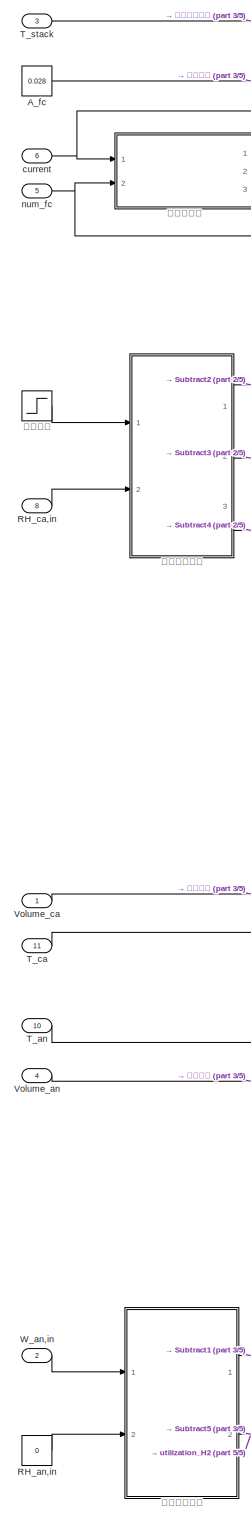
[diagram: root canvas - part 1/5, left side, full height]
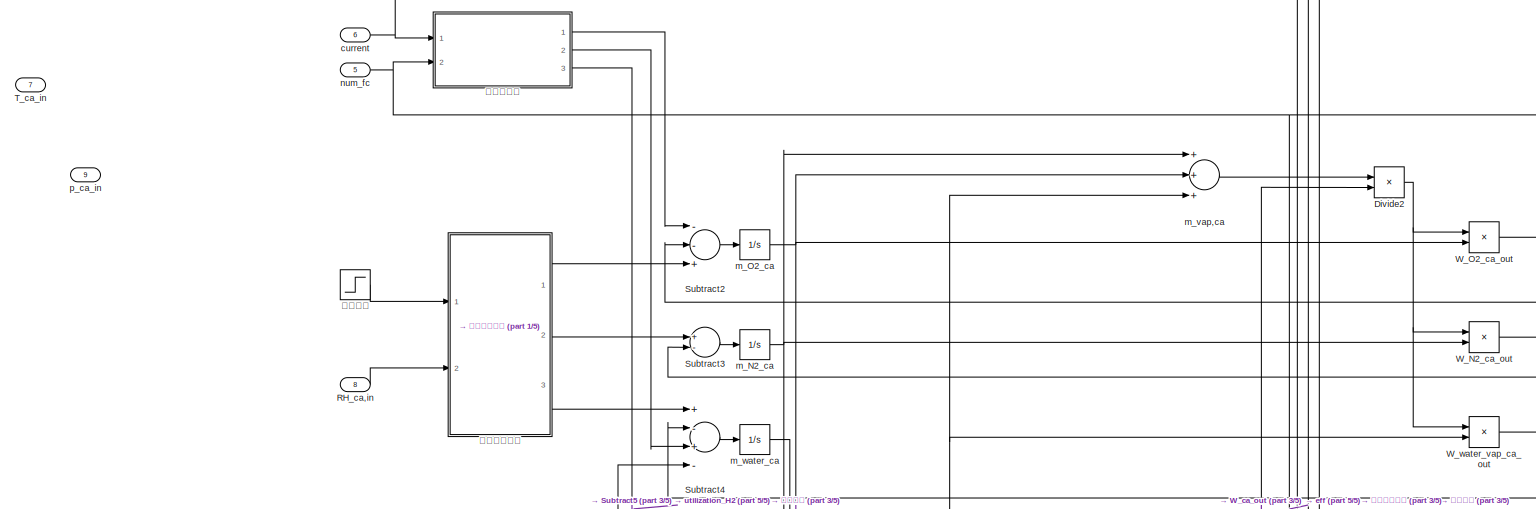
[diagram: root canvas - part 2/5, full width, top band]
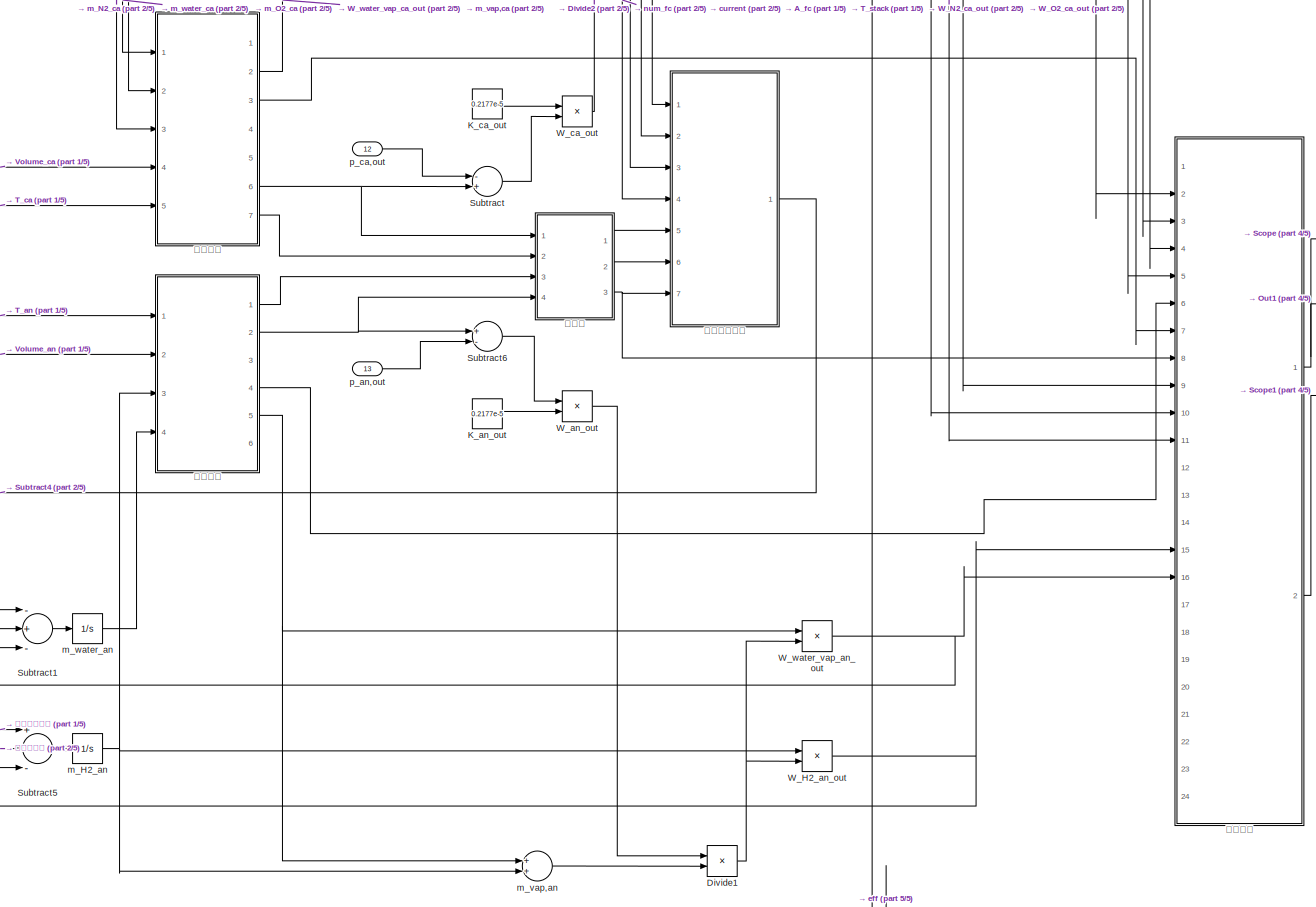
[diagram: root canvas - part 3/5, bottom center region]
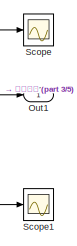
[diagram: root canvas - part 4/5, middle right region]
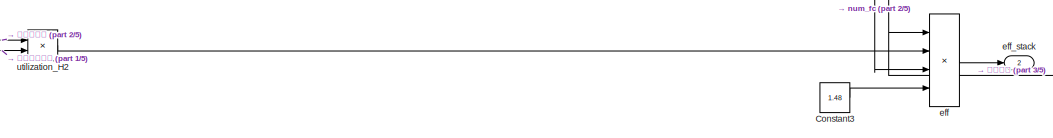
[diagram: root canvas - part 5/5, bottom center region]
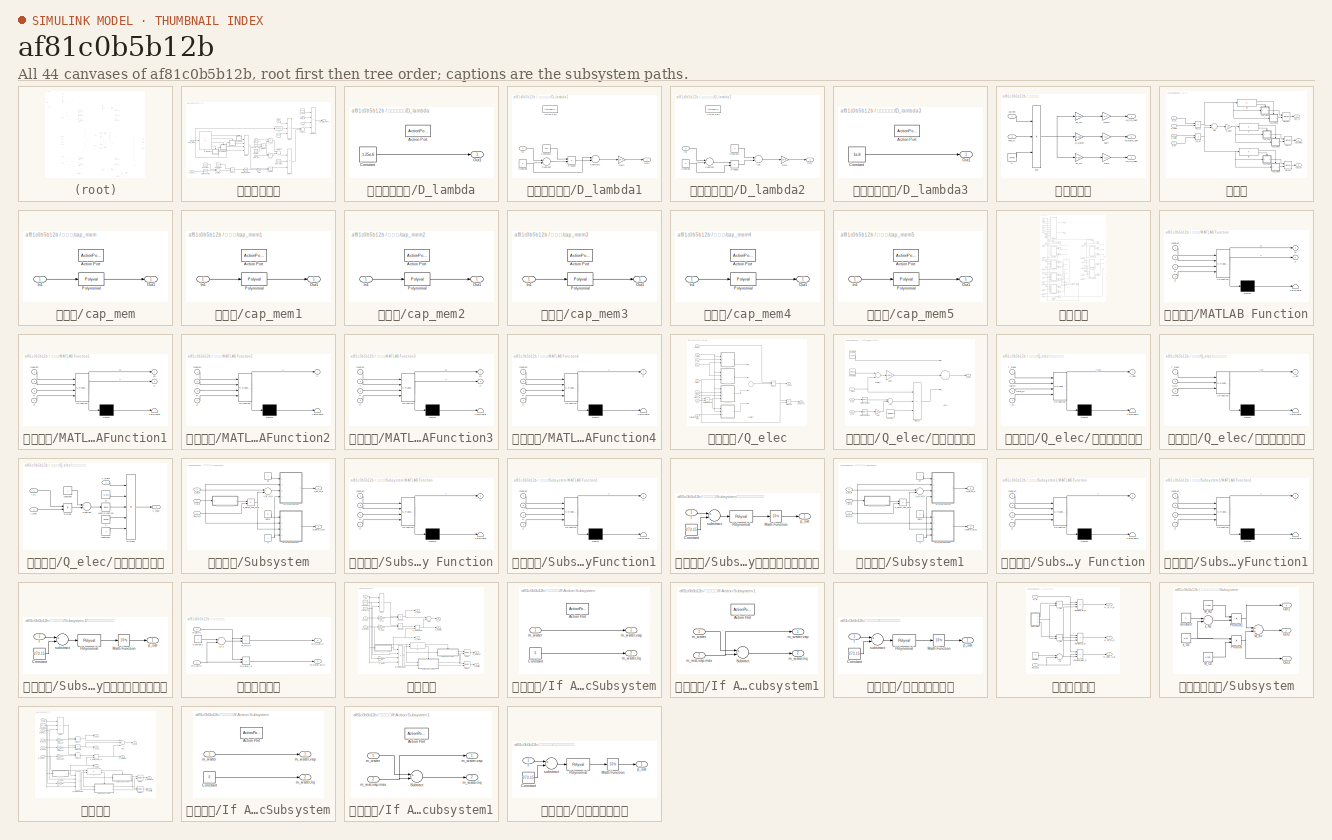
[diagram: thumbnail index - all 44 canvases of the model, root first then tree order]
MODEL slx_af81c0b5b12b
KIND model
BLOCK [Constant] A_fc
  Value = 0.028
BLOCK [Constant] Constant3
  Value = 1.48
BLOCK [Product] Divide1
  InputSameDT = off
  Inputs = */
  OutDataTypeStr = Inherit: Inherit via internal rule
  Ports = [2, 1]
  RndMeth = Floor
  SaturateOnIntegerOverflow = off
BLOCK [Product] Divide2
  InputSameDT = off
  Inputs = /*
  OutDataTypeStr = Inherit: Inherit via internal rule
  Ports = [2, 1]
  RndMeth = Floor
  SaturateOnIntegerOverflow = off
BLOCK [Constant] K_an_out
  Value = 0.2177e-5
BLOCK [Constant] K_ca_out
  Value = 0.2177e-5
BLOCK [Outport] Out1
  IconDisplay = Port number
BLOCK [Constant] RH_an,in
  Value = 0
BLOCK [Inport] RH_ca,in
  IconDisplay = Port number
  Port = 8
BLOCK [Scope] Scope
  Floating = off
  NumInputPorts = 1
  Ports = [1]
  ShowLegends = off
BLOCK [Scope] Scope1
  Floating = off
  NumInputPorts = 1
  Ports = [1]
  SaveName = ScopeData1
  ShowLegends = off
BLOCK [Sum] Subtract
  InputSameDT = off
  Inputs = -+
  OutDataTypeStr = Inherit: Inherit via internal rule
  Ports = [2, 1]
  SaturateOnIntegerOverflow = off
BLOCK [Sum] Subtract1
  InputSameDT = off
  Inputs = -+-
  OutDataTypeStr = Inherit: Inherit via internal rule
  Ports = [3, 1]
  SaturateOnIntegerOverflow = off
BLOCK [Sum] Subtract2
  InputSameDT = off
  Inputs = --+
  OutDataTypeStr = Inherit: Inherit via internal rule
  Ports = [3, 1]
  SaturateOnIntegerOverflow = off
BLOCK [Sum] Subtract3
  InputSameDT = off
  Inputs = +-
  OutDataTypeStr = Inherit: Inherit via internal rule
  Ports = [2, 1]
  SaturateOnIntegerOverflow = off
BLOCK [Sum] Subtract4
  InputSameDT = off
  Inputs = +-+-
  OutDataTypeStr = Inherit: Inherit via internal rule
  Ports = [4, 1]
  SaturateOnIntegerOverflow = off
BLOCK [Sum] Subtract5
  InputSameDT = off
  Inputs = +--
  OutDataTypeStr = Inherit: Inherit via internal rule
  Ports = [3, 1]
  SaturateOnIntegerOverflow = off
BLOCK [Sum] Subtract6
  InputSameDT = off
  Inputs = +-
  OutDataTypeStr = Inherit: Inherit via internal rule
  Ports = [2, 1]
  SaturateOnIntegerOverflow = off
BLOCK [Inport] T_an
  IconDisplay = Port number
  Port = 10
BLOCK [Inport] T_ca
  IconDisplay = Port number
  Port = 11
BLOCK [Inport] T_ca_in
  IconDisplay = Port number
  Port = 7
BLOCK [Inport] T_stack
  IconDisplay = Port number
  Port = 3
BLOCK [Inport] Volume_an
  IconDisplay = Port number
  Port = 4
BLOCK [Inport] Volume_ca
  IconDisplay = Port number
BLOCK [Product] W_H2_an_out
  InputSameDT = off
  OutDataTypeStr = Inherit: Inherit via internal rule
  Ports = [2, 1]
  RndMeth = Floor
  SaturateOnIntegerOverflow = off
BLOCK [Product] W_N2_ca_out
  InputSameDT = off
  OutDataTypeStr = Inherit: Inherit via internal rule
  Ports = [2, 1]
  RndMeth = Floor
  SaturateOnIntegerOverflow = off
BLOCK [Product] W_O2_ca_out
  InputSameDT = off
  OutDataTypeStr = Inherit: Inherit via internal rule
  Ports = [2, 1]
  RndMeth = Floor
  SaturateOnIntegerOverflow = off
BLOCK [Inport] W_an,in
  IconDisplay = Port number
  Port = 2
BLOCK [Product] W_an_out
  InputSameDT = off
  OutDataTypeStr = Inherit: Inherit via internal rule
  Ports = [2, 1]
  RndMeth = Floor
  SaturateOnIntegerOverflow = off
BLOCK [Product] W_ca_out
  InputSameDT = off
  OutDataTypeStr = Inherit: Inherit via internal rule
  Ports = [2, 1]
  RndMeth = Floor
  SaturateOnIntegerOverflow = off
BLOCK [Product] W_water_vap_an_out
  InputSameDT = off
  OutDataTypeStr = Inherit: Inherit via internal rule
  Ports = [2, 1]
  RndMeth = Floor
  SaturateOnIntegerOverflow = off
BLOCK [Product] W_water_vap_ca_out
  InputSameDT = off
  OutDataTypeStr = Inherit: Inherit via internal rule
  Ports = [2, 1]
  RndMeth = Floor
  SaturateOnIntegerOverflow = off
BLOCK [Inport] current
  IconDisplay = Port number
  Port = 6
BLOCK [Product] eff
  InputSameDT = off
  Inputs = **//
  OutDataTypeStr = Inherit: Inherit via internal rule
  Ports = [4, 1]
  RndMeth = Floor
  SaturateOnIntegerOverflow = off
BLOCK [Outport] eff_stack
  IconDisplay = Port number
  Port = 2
BLOCK [Integrator] m_H2_an
  Ports = [1, 1]
BLOCK [Integrator] m_N2_ca
  Ports = [1, 1]
BLOCK [Integrator] m_O2_ca
  Ports = [1, 1]
BLOCK [Sum] m_vap,an
  InputSameDT = off
  OutDataTypeStr = Inherit: Inherit via internal rule
  Ports = [2, 1]
  SaturateOnIntegerOverflow = off
BLOCK [Sum] m_vap,ca
  InputSameDT = off
  Inputs = +++
  OutDataTypeStr = Inherit: Inherit via internal rule
  Ports = [3, 1]
  SaturateOnIntegerOverflow = off
BLOCK [Integrator] m_water_an
  Ports = [1, 1]
BLOCK [Integrator] m_water_ca
  Ports = [1, 1]
BLOCK [Inport] num_fc
  IconDisplay = Port number
  Port = 5
BLOCK [Inport] p_an,out
  IconDisplay = Port number
  Port = 13
BLOCK [Inport] p_ca,out
  IconDisplay = Port number
  Port = 12
BLOCK [Inport] p_ca_in
  IconDisplay = Port number
  Port = 9
BLOCK [Product] utilization_H2
  InputSameDT = off
  Inputs = */
  OutDataTypeStr = Inherit: Inherit via internal rule
  Ports = [2, 1]
  RndMeth = Floor
  SaturateOnIntegerOverflow = off
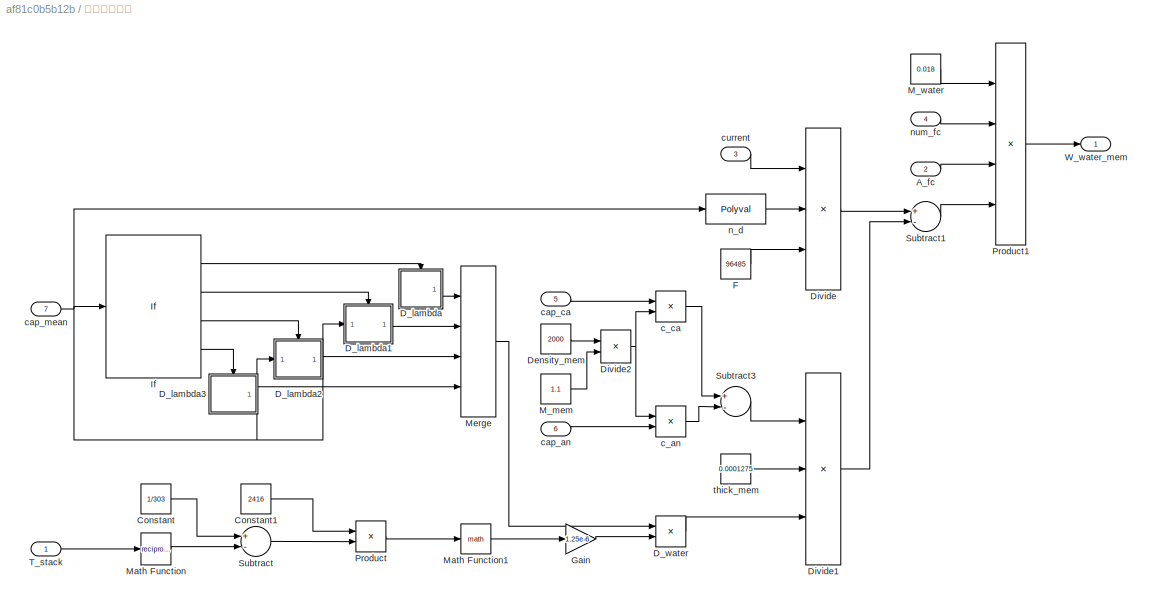
BLOCK [SubSystem] 交换膜水传递
  Ports = [7, 1]
  RequestExecContextInheritance = off
  TreatAsAtomicUnit = on
BLOCK [Inport] 交换膜水传递/A_fc
  IconDisplay = Port number
  Port = 2
BLOCK [Constant] 交换膜水传递/Constant
  Value = 1/303
BLOCK [Constant] 交换膜水传递/Constant1
  Value = 2416
BLOCK [SubSystem] 交换膜水传递/D_lambda
  Ports = [0, 1, 0, 0, 0, 0, 0, 1]
  RequestExecContextInheritance = off
  TreatAsAtomicUnit = on
BLOCK [ActionPort] 交换膜水传递/D_lambda/Action Port
  ActionType = then
BLOCK [Constant] 交换膜水传递/D_lambda/Constant
  Value = 1.25e-6
BLOCK [Outport] 交换膜水传递/D_lambda/Out1
  IconDisplay = Port number
BLOCK [SubSystem] 交换膜水传递/D_lambda1
  Ports = [1, 1, 0, 0, 0, 0, 0, 1]
  RequestExecContextInheritance = off
  TreatAsAtomicUnit = on
BLOCK [ActionPort] 交换膜水传递/D_lambda1/Action Port
  ActionType = elseif
BLOCK [Constant] 交换膜水传递/D_lambda1/Constant
  Value = 3
BLOCK [Constant] 交换膜水传递/D_lambda1/Constant1
  Value = 1.67
BLOCK [Gain] 交换膜水传递/D_lambda1/Gain
  Gain = 1e-6
  OutDataTypeStr = Inherit: Inherit via internal rule
  ParamDataTypeStr = Inherit: Inherit via internal rule
  SaturateOnIntegerOverflow = off
BLOCK [Inport] 交换膜水传递/D_lambda1/In1
  IconDisplay = Port number
BLOCK [Outport] 交换膜水传递/D_lambda1/Out1
  IconDisplay = Port number
BLOCK [Product] 交换膜水传递/D_lambda1/Product
  InputSameDT = off
  OutDataTypeStr = Inherit: Inherit via internal rule
  Ports = [2, 1]
  RndMeth = Floor
  SaturateOnIntegerOverflow = off
BLOCK [Sum] 交换膜水传递/D_lambda1/Subtract
  InputSameDT = off
  Inputs = +-
  OutDataTypeStr = Inherit: Inherit via internal rule
  Ports = [2, 1]
  SaturateOnIntegerOverflow = off
BLOCK [Sum] 交换膜水传递/D_lambda1/Subtract1
  InputSameDT = off
  Inputs = +-
  OutDataTypeStr = Inherit: Inherit via internal rule
  Ports = [2, 1]
  SaturateOnIntegerOverflow = off
BLOCK [SubSystem] 交换膜水传递/D_lambda2
  Ports = [1, 1, 0, 0, 0, 0, 0, 1]
  RequestExecContextInheritance = off
  TreatAsAtomicUnit = on
BLOCK [ActionPort] 交换膜水传递/D_lambda2/Action Port
  ActionType = elseif
BLOCK [Sum] 交换膜水传递/D_lambda2/Add
  InputSameDT = off
  OutDataTypeStr = Inherit: Inherit via internal rule
  Ports = [2, 1]
  SaturateOnIntegerOverflow = off
BLOCK [Constant] 交换膜水传递/D_lambda2/Constant
  Value = 2
BLOCK [Constant] 交换膜水传递/D_lambda2/Constant1
BLOCK [Gain] 交换膜水传递/D_lambda2/Gain
  Gain = 1e-6
  OutDataTypeStr = Inherit: Inherit via internal rule
  ParamDataTypeStr = Inherit: Inherit via internal rule
  SaturateOnIntegerOverflow = off
BLOCK [Inport] 交换膜水传递/D_lambda2/In1
  IconDisplay = Port number
BLOCK [Outport] 交换膜水传递/D_lambda2/Out1
  IconDisplay = Port number
BLOCK [Product] 交换膜水传递/D_lambda2/Product
  InputSameDT = off
  OutDataTypeStr = Inherit: Inherit via internal rule
  Ports = [2, 1]
  RndMeth = Floor
  SaturateOnIntegerOverflow = off
BLOCK [Sum] 交换膜水传递/D_lambda2/Subtract
  InputSameDT = off
  Inputs = +-
  OutDataTypeStr = Inherit: Inherit via internal rule
  Ports = [2, 1]
  SaturateOnIntegerOverflow = off
BLOCK [SubSystem] 交换膜水传递/D_lambda3
  Ports = [0, 1, 0, 0, 0, 0, 0, 1]
  RequestExecContextInheritance = off
  TreatAsAtomicUnit = on
BLOCK [ActionPort] 交换膜水传递/D_lambda3/Action Port
  ActionType = else
BLOCK [Constant] 交换膜水传递/D_lambda3/Constant
  Value = 1e-6
BLOCK [Outport] 交换膜水传递/D_lambda3/Out1
  IconDisplay = Port number
BLOCK [Product] 交换膜水传递/D_water
  InputSameDT = off
  OutDataTypeStr = Inherit: Inherit via internal rule
  Ports = [2, 1]
  RndMeth = Floor
  SaturateOnIntegerOverflow = off
BLOCK [Constant] 交换膜水传递/Density_mem
  Value = 2000
BLOCK [Product] 交换膜水传递/Divide
  InputSameDT = off
  Inputs = */*
  OutDataTypeStr = Inherit: Inherit via internal rule
  Ports = [3, 1]
  RndMeth = Floor
  SaturateOnIntegerOverflow = off
BLOCK [Product] 交换膜水传递/Divide1
  InputSameDT = off
  Inputs = */*
  OutDataTypeStr = Inherit: Inherit via internal rule
  Ports = [3, 1]
  RndMeth = Floor
  SaturateOnIntegerOverflow = off
BLOCK [Product] 交换膜水传递/Divide2
  InputSameDT = off
  Inputs = */
  OutDataTypeStr = Inherit: Inherit via internal rule
  Ports = [2, 1]
  RndMeth = Floor
  SaturateOnIntegerOverflow = off
BLOCK [Constant] 交换膜水传递/F
  Value = 96485
BLOCK [Gain] 交换膜水传递/Gain
  Gain = 1.25e-6
  OutDataTypeStr = Inherit: Inherit via internal rule
  ParamDataTypeStr = Inherit: Inherit via internal rule
  SaturateOnIntegerOverflow = off
BLOCK [If] 交换膜水传递/If
  ElseIfExpressions = u1 > 3,u1 >= 2
  IfExpression = u1 >= 4.5
  Ports = [1, 4]
  ZeroCross = off
BLOCK [Constant] 交换膜水传递/M_mem
  Value = 1.1
BLOCK [Constant] 交换膜水传递/M_water
  Value = 0.018
BLOCK [Math] 交换膜水传递/Math Function
  Operator = reciprocal
  Ports = [1, 1]
BLOCK [Math] 交换膜水传递/Math Function1
  Ports = [1, 1]
BLOCK [Merge] 交换膜水传递/Merge
  Inputs = 4
  Ports = [4, 1]
BLOCK [Product] 交换膜水传递/Product
  InputSameDT = off
  OutDataTypeStr = Inherit: Inherit via internal rule
  Ports = [2, 1]
  RndMeth = Floor
  SaturateOnIntegerOverflow = off
BLOCK [Product] 交换膜水传递/Product1
  InputSameDT = off
  Inputs = 4
  OutDataTypeStr = Inherit: Inherit via internal rule
  Ports = [4, 1]
  RndMeth = Floor
  SaturateOnIntegerOverflow = off
BLOCK [Sum] 交换膜水传递/Subtract
  InputSameDT = off
  Inputs = +-
  OutDataTypeStr = Inherit: Inherit via internal rule
  Ports = [2, 1]
  SaturateOnIntegerOverflow = off
BLOCK [Sum] 交换膜水传递/Subtract1
  InputSameDT = off
  Inputs = +-
  OutDataTypeStr = Inherit: Inherit via internal rule
  Ports = [2, 1]
  SaturateOnIntegerOverflow = off
BLOCK [Sum] 交换膜水传递/Subtract3
  InputSameDT = off
  Inputs = +-
  OutDataTypeStr = Inherit: Inherit via internal rule
  Ports = [2, 1]
  SaturateOnIntegerOverflow = off
BLOCK [Inport] 交换膜水传递/T_stack
  IconDisplay = Port number
BLOCK [Outport] 交换膜水传递/W_water_mem
  IconDisplay = Port number
BLOCK [Product] 交换膜水传递/c_an
  InputSameDT = off
  OutDataTypeStr = Inherit: Inherit via internal rule
  Ports = [2, 1]
  RndMeth = Floor
  SaturateOnIntegerOverflow = off
BLOCK [Product] 交换膜水传递/c_ca
  InputSameDT = off
  OutDataTypeStr = Inherit: Inherit via internal rule
  Ports = [2, 1]
  RndMeth = Floor
  SaturateOnIntegerOverflow = off
BLOCK [Inport] 交换膜水传递/cap_an
  IconDisplay = Port number
  Port = 6
BLOCK [Inport] 交换膜水传递/cap_ca
  IconDisplay = Port number
  Port = 5
BLOCK [Inport] 交换膜水传递/cap_mean
  IconDisplay = Port number
  Port = 7
BLOCK [Inport] 交换膜水传递/current
  IconDisplay = Port number
  Port = 3
BLOCK [Polyval] 交换膜水传递/n_d
  Coefs = [0.0029,0.05,-3.4e-19]
BLOCK [Inport] 交换膜水传递/num_fc
  IconDisplay = Port number
  Port = 4
BLOCK [Constant] 交换膜水传递/thick_mem
  Value = 0.0001275
BLOCK [SubSystem] 反应过程量
  Ports = [2, 3]
  RequestExecContextInheritance = off
BLOCK [Constant] 反应过程量/F
  Value = 96485
BLOCK [Gain] 反应过程量/Gain
  Gain = 1/2
  OutDataTypeStr = Inherit: Inherit via internal rule
  ParamDataTypeStr = Inherit: Inherit via internal rule
  SaturateOnIntegerOverflow = off
BLOCK [Gain] 反应过程量/Gain1
  Gain = 1/4
  OutDataTypeStr = Inherit: Inherit via internal rule
  ParamDataTypeStr = Inherit: Inherit via internal rule
  SaturateOnIntegerOverflow = off
BLOCK [Gain] 反应过程量/M_H2
  Gain = 0.002
  OutDataTypeStr = Inherit: Inherit via internal rule
  ParamDataTypeStr = Inherit: Inherit via internal rule
  SaturateOnIntegerOverflow = off
BLOCK [Gain] 反应过程量/M_O2
  Gain = 0.032
  OutDataTypeStr = Inherit: Inherit via internal rule
  ParamDataTypeStr = Inherit: Inherit via internal rule
  SaturateOnIntegerOverflow = off
BLOCK [Gain] 反应过程量/M_water
  Gain = 0.018
  OutDataTypeStr = Inherit: Inherit via internal rule
  ParamDataTypeStr = Inherit: Inherit via internal rule
  SaturateOnIntegerOverflow = off
BLOCK [Outport] 反应过程量/W_H2_react
  IconDisplay = Port number
  Port = 3
BLOCK [Outport] 反应过程量/W_O2_react
  IconDisplay = Port number
BLOCK [Outport] 反应过程量/W_water_gen
  IconDisplay = Port number
  Port = 2
BLOCK [Inport] 反应过程量/current
  IconDisplay = Port number
BLOCK [Gain] 反应过程量/gain
  Gain = 1/2
  OutDataTypeStr = Inherit: Inherit via internal rule
  ParamDataTypeStr = Inherit: Inherit via internal rule
  SaturateOnIntegerOverflow = off
BLOCK [Inport] 反应过程量/num_fc
  IconDisplay = Port number
  Port = 2
BLOCK [Product] 反应过程量/sub
  InputSameDT = off
  Inputs = **/
  OutDataTypeStr = Inherit: Inherit via internal rule
  Ports = [3, 1]
  RndMeth = Floor
  SaturateOnIntegerOverflow = off
BLOCK [SubSystem] 含水量
  Ports = [4, 3]
  RequestExecContextInheritance = off
BLOCK [Sum] 含水量/Add
  InputSameDT = off
  OutDataTypeStr = Inherit: Inherit via internal rule
  Ports = [2, 1]
  SaturateOnIntegerOverflow = off
BLOCK [If] 含水量/If
  IfExpression = u1 > 1
  Ports = [1, 2]
BLOCK [If] 含水量/If1
  IfExpression = u1 > 1
  Ports = [1, 2]
BLOCK [If] 含水量/If2
  IfExpression = u1 > 1
  Ports = [1, 2]
BLOCK [Merge] 含水量/Merge
  Ports = [2, 1]
BLOCK [Merge] 含水量/Merge1
  Ports = [2, 1]
BLOCK [Merge] 含水量/Merge2
  Ports = [2, 1]
BLOCK [Product] 含水量/RH_an
  InputSameDT = off
  Inputs = /*
  OutDataTypeStr = Inherit: Inherit via internal rule
  Ports = [2, 1]
  RndMeth = Floor
  SaturateOnIntegerOverflow = off
BLOCK [Product] 含水量/RH_ca
  InputSameDT = off
  Inputs = */
  OutDataTypeStr = Inherit: Inherit via internal rule
  Ports = [2, 1]
  RndMeth = Floor
  SaturateOnIntegerOverflow = off
BLOCK [Gain] 含水量/a_mean
  Gain = 1/2
  OutDataTypeStr = Inherit: Inherit via internal rule
  ParamDataTypeStr = Inherit: Inherit via internal rule
  SaturateOnIntegerOverflow = off
BLOCK [Outport] 含水量/cap_an
  IconDisplay = Port number
  Port = 2
BLOCK [Outport] 含水量/cap_ca
  IconDisplay = Port number
BLOCK [Outport] 含水量/cap_mean
  IconDisplay = Port number
  Port = 3
BLOCK [SubSystem] 含水量/cap_mem
  Ports = [1, 1, 0, 0, 0, 0, 0, 1]
  RequestExecContextInheritance = off
  TreatAsAtomicUnit = on
BLOCK [ActionPort] 含水量/cap_mem/Action Port
  ActionType = else
BLOCK [Inport] 含水量/cap_mem/In1
  IconDisplay = Port number
BLOCK [Outport] 含水量/cap_mem/Out1
  IconDisplay = Port number
BLOCK [Polyval] 含水量/cap_mem/Polynomial
  Coefs = [36,-39.85,17.81,0.043]
BLOCK [SubSystem] 含水量/cap_mem1
  Ports = [1, 1, 0, 0, 0, 0, 0, 1]
  RequestExecContextInheritance = off
  TreatAsAtomicUnit = on
BLOCK [ActionPort] 含水量/cap_mem1/Action Port
  ActionType = then
BLOCK [Inport] 含水量/cap_mem1/In1
  IconDisplay = Port number
BLOCK [Outport] 含水量/cap_mem1/Out1
  IconDisplay = Port number
BLOCK [Polyval] 含水量/cap_mem1/Polynomial
  Coefs = [1.4,-14]
BLOCK [SubSystem] 含水量/cap_mem2
  Ports = [1, 1, 0, 0, 0, 0, 0, 1]
  RequestExecContextInheritance = off
  TreatAsAtomicUnit = on
BLOCK [ActionPort] 含水量/cap_mem2/Action Port
  ActionType = else
BLOCK [Inport] 含水量/cap_mem2/In1
  IconDisplay = Port number
BLOCK [Outport] 含水量/cap_mem2/Out1
  IconDisplay = Port number
BLOCK [Polyval] 含水量/cap_mem2/Polynomial
  Coefs = [36,-39.85,17.81,0.043]
BLOCK [SubSystem] 含水量/cap_mem3
  Ports = [1, 1, 0, 0, 0, 0, 0, 1]
  RequestExecContextInheritance = off
  TreatAsAtomicUnit = on
BLOCK [ActionPort] 含水量/cap_mem3/Action Port
  ActionType = then
BLOCK [Inport] 含水量/cap_mem3/In1
  IconDisplay = Port number
BLOCK [Outport] 含水量/cap_mem3/Out1
  IconDisplay = Port number
BLOCK [Polyval] 含水量/cap_mem3/Polynomial
  Coefs = [1.4,-14]
BLOCK [SubSystem] 含水量/cap_mem4
  Ports = [1, 1, 0, 0, 0, 0, 0, 1]
  RequestExecContextInheritance = off
  TreatAsAtomicUnit = on
BLOCK [ActionPort] 含水量/cap_mem4/Action Port
  ActionType = else
BLOCK [Inport] 含水量/cap_mem4/In1
  IconDisplay = Port number
BLOCK [Outport] 含水量/cap_mem4/Out1
  IconDisplay = Port number
BLOCK [Polyval] 含水量/cap_mem4/Polynomial
  Coefs = [36,-39.85,17.81,0.043]
BLOCK [SubSystem] 含水量/cap_mem5
  Ports = [1, 1, 0, 0, 0, 0, 0, 1]
  RequestExecContextInheritance = off
  TreatAsAtomicUnit = on
BLOCK [ActionPort] 含水量/cap_mem5/Action Port
  ActionType = then
BLOCK [Inport] 含水量/cap_mem5/In1
  IconDisplay = Port number
BLOCK [Outport] 含水量/cap_mem5/Out1
  IconDisplay = Port number
BLOCK [Polyval] 含水量/cap_mem5/Polynomial
  Coefs = [1.4,-14]
BLOCK [Inport] 含水量/p_an
  IconDisplay = Port number
  Port = 4
BLOCK [Inport] 含水量/p_ca
  IconDisplay = Port number
BLOCK [Inport] 含水量/p_sat,an
  IconDisplay = Port number
  Port = 3
BLOCK [Inport] 含水量/p_sat,ca
  IconDisplay = Port number
  Port = 2
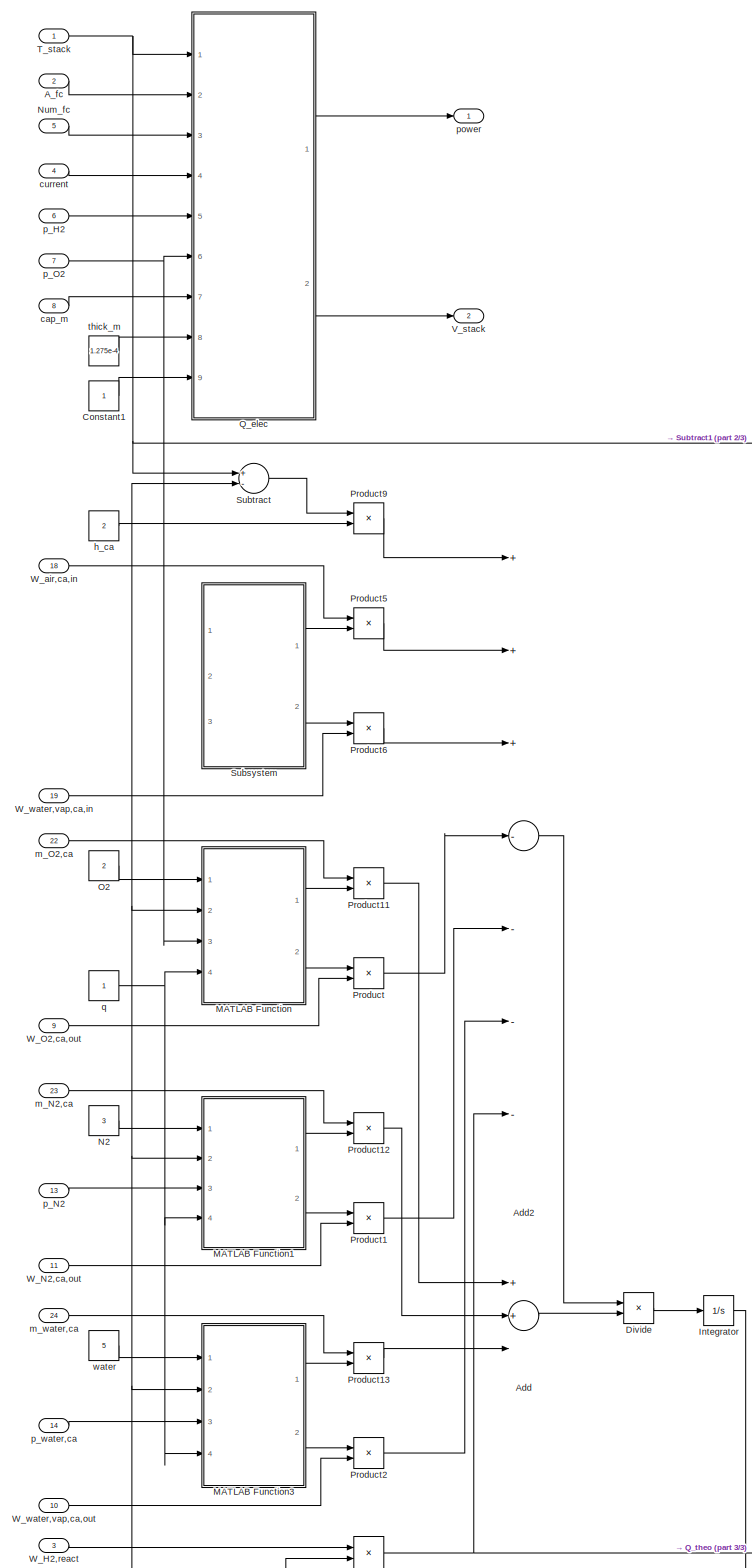
[diagram: 温度模型 - part 1/3, left side, full height]
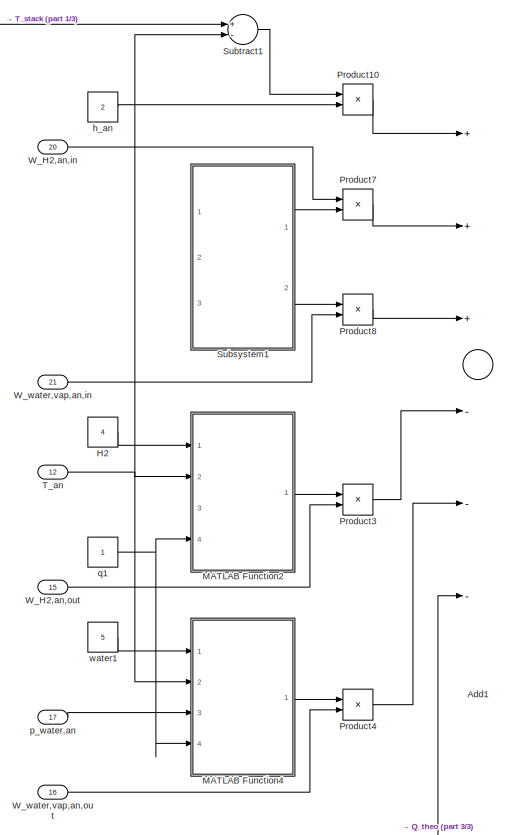
[diagram: 温度模型 - part 2/3, middle right region]
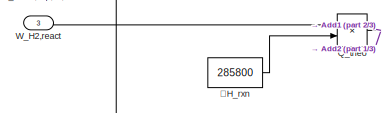
[diagram: 温度模型 - part 3/3, bottom left region]
BLOCK [SubSystem] 温度模型
  Ports = [24, 2]
  RequestExecContextInheritance = off
BLOCK [Inport] 温度模型/A_fc
  IconDisplay = Port number
  Port = 2
BLOCK [Sum] 温度模型/Add
  InputSameDT = off
  Inputs = 3
  OutDataTypeStr = Inherit: Inherit via internal rule
  Ports = [3, 1]
  SaturateOnIntegerOverflow = off
BLOCK [Sum] 温度模型/Add1
  InputSameDT = off
  Inputs = +++---
  OutDataTypeStr = Inherit: Inherit via internal rule
  Ports = [6, 1]
  SaturateOnIntegerOverflow = off
BLOCK [Sum] 温度模型/Add2
  InputSameDT = off
  Inputs = +++----
  OutDataTypeStr = Inherit: Inherit via internal rule
  Ports = [7, 1]
  SaturateOnIntegerOverflow = off
BLOCK [Constant] 温度模型/Constant1
BLOCK [Product] 温度模型/Divide
  InputSameDT = off
  Inputs = */
  OutDataTypeStr = Inherit: Inherit via internal rule
  Ports = [2, 1]
  RndMeth = Floor
  SaturateOnIntegerOverflow = off
BLOCK [Constant] 温度模型/H2
  Value = 4
BLOCK [Integrator] 温度模型/Integrator
  Ports = [1, 1]
BLOCK [SubSystem] 温度模型/MATLAB Function
  ErrorFcn = Stateflow.Translate.translate
  PermitHierarchicalResolution = ExplicitOnly
  Ports = [4, 2]
  RequestExecContextInheritance = off
  SFBlockType = MATLAB Function
  TreatAsAtomicUnit = on
BLOCK [Demux] 温度模型/MATLAB Function/ Demux 
  Outputs = 1
  Ports = [1, 1]
BLOCK [S-Function] 温度模型/MATLAB Function/ SFunction 
  EnableBusSupport = off
  FunctionName = sf_sfun
  PortCounts = [4 3]
  Ports = [4, 3]
  Tag = Stateflow S-Function PEMFC_system 3
BLOCK [Terminator] 温度模型/MATLAB Function/ Terminator 
BLOCK [Outport] 温度模型/MATLAB Function/cp
  IconDisplay = Port number
BLOCK [Outport] 温度模型/MATLAB Function/h
  IconDisplay = Port number
  Port = 2
BLOCK [Inport] 温度模型/MATLAB Function/medium
  IconDisplay = Port number
BLOCK [Inport] 温度模型/MATLAB Function/p
  IconDisplay = Port number
  Port = 3
BLOCK [Inport] 温度模型/MATLAB Function/q
  IconDisplay = Port number
  Port = 4
BLOCK [Inport] 温度模型/MATLAB Function/t
  IconDisplay = Port number
  Port = 2
BLOCK [SubSystem] 温度模型/MATLAB Function1
  ErrorFcn = Stateflow.Translate.translate
  PermitHierarchicalResolution = ExplicitOnly
  Ports = [4, 2]
  RequestExecContextInheritance = off
  SFBlockType = MATLAB Function
  TreatAsAtomicUnit = on
BLOCK [Demux] 温度模型/MATLAB Function1/ Demux 
  Outputs = 1
  Ports = [1, 1]
BLOCK [S-Function] 温度模型/MATLAB Function1/ SFunction 
  EnableBusSupport = off
  FunctionName = sf_sfun
  PortCounts = [4 3]
  Ports = [4, 3]
  Tag = Stateflow S-Function PEMFC_system 4
BLOCK [Terminator] 温度模型/MATLAB Function1/ Terminator 
BLOCK [Outport] 温度模型/MATLAB Function1/cp
  IconDisplay = Port number
BLOCK [Outport] 温度模型/MATLAB Function1/h
  IconDisplay = Port number
  Port = 2
BLOCK [Inport] 温度模型/MATLAB Function1/medium
  IconDisplay = Port number
BLOCK [Inport] 温度模型/MATLAB Function1/p
  IconDisplay = Port number
  Port = 3
BLOCK [Inport] 温度模型/MATLAB Function1/q
  IconDisplay = Port number
  Port = 4
BLOCK [Inport] 温度模型/MATLAB Function1/t
  IconDisplay = Port number
  Port = 2
BLOCK [SubSystem] 温度模型/MATLAB Function2
  ErrorFcn = Stateflow.Translate.translate
  PermitHierarchicalResolution = ExplicitOnly
  Ports = [4, 1]
  RequestExecContextInheritance = off
  SFBlockType = MATLAB Function
  TreatAsAtomicUnit = on
BLOCK [Demux] 温度模型/MATLAB Function2/ Demux 
  Outputs = 1
  Ports = [1, 1]
BLOCK [S-Function] 温度模型/MATLAB Function2/ SFunction 
  EnableBusSupport = off
  FunctionName = sf_sfun
  PortCounts = [4 2]
  Ports = [4, 2]
  Tag = Stateflow S-Function PEMFC_system 5
BLOCK [Terminator] 温度模型/MATLAB Function2/ Terminator 
BLOCK [Outport] 温度模型/MATLAB Function2/h
  IconDisplay = Port number
BLOCK [Inport] 温度模型/MATLAB Function2/medium
  IconDisplay = Port number
BLOCK [Inport] 温度模型/MATLAB Function2/p
  IconDisplay = Port number
  Port = 3
BLOCK [Inport] 温度模型/MATLAB Function2/q
  IconDisplay = Port number
  Port = 4
BLOCK [Inport] 温度模型/MATLAB Function2/t
  IconDisplay = Port number
  Port = 2
BLOCK [SubSystem] 温度模型/MATLAB Function3
  ErrorFcn = Stateflow.Translate.translate
  PermitHierarchicalResolution = ExplicitOnly
  Ports = [4, 2]
  RequestExecContextInheritance = off
  SFBlockType = MATLAB Function
  TreatAsAtomicUnit = on
BLOCK [Demux] 温度模型/MATLAB Function3/ Demux 
  Outputs = 1
  Ports = [1, 1]
BLOCK [S-Function] 温度模型/MATLAB Function3/ SFunction 
  EnableBusSupport = off
  FunctionName = sf_sfun
  PortCounts = [4 3]
  Ports = [4, 3]
  Tag = Stateflow S-Function PEMFC_system 6
BLOCK [Terminator] 温度模型/MATLAB Function3/ Terminator 
BLOCK [Outport] 温度模型/MATLAB Function3/cp
  IconDisplay = Port number
BLOCK [Outport] 温度模型/MATLAB Function3/h
  IconDisplay = Port number
  Port = 2
BLOCK [Inport] 温度模型/MATLAB Function3/medium
  IconDisplay = Port number
BLOCK [Inport] 温度模型/MATLAB Function3/p
  IconDisplay = Port number
  Port = 3
BLOCK [Inport] 温度模型/MATLAB Function3/q
  IconDisplay = Port number
  Port = 4
BLOCK [Inport] 温度模型/MATLAB Function3/t
  IconDisplay = Port number
  Port = 2
BLOCK [SubSystem] 温度模型/MATLAB Function4
  ErrorFcn = Stateflow.Translate.translate
  PermitHierarchicalResolution = ExplicitOnly
  Ports = [4, 1]
  RequestExecContextInheritance = off
  SFBlockType = MATLAB Function
  TreatAsAtomicUnit = on
BLOCK [Demux] 温度模型/MATLAB Function4/ Demux 
  Outputs = 1
  Ports = [1, 1]
BLOCK [S-Function] 温度模型/MATLAB Function4/ SFunction 
  EnableBusSupport = off
  FunctionName = sf_sfun
  PortCounts = [4 2]
  Ports = [4, 2]
  Tag = Stateflow S-Function PEMFC_system 11
BLOCK [Terminator] 温度模型/MATLAB Function4/ Terminator 
BLOCK [Outport] 温度模型/MATLAB Function4/h
  IconDisplay = Port number
BLOCK [Inport] 温度模型/MATLAB Function4/medium
  IconDisplay = Port number
BLOCK [Inport] 温度模型/MATLAB Function4/p
  IconDisplay = Port number
  Port = 3
BLOCK [Inport] 温度模型/MATLAB Function4/q
  IconDisplay = Port number
  Port = 4
BLOCK [Inport] 温度模型/MATLAB Function4/t
  IconDisplay = Port number
  Port = 2
BLOCK [Constant] 温度模型/N2
  Value = 3
BLOCK [Inport] 温度模型/Num_fc
  IconDisplay = Port number
  Port = 5
BLOCK [Constant] 温度模型/O2
  Value = 2
BLOCK [Product] 温度模型/Product
  InputSameDT = off
  OutDataTypeStr = Inherit: Inherit via internal rule
  Ports = [2, 1]
  RndMeth = Floor
  SaturateOnIntegerOverflow = off
BLOCK [Product] 温度模型/Product1
  InputSameDT = off
  OutDataTypeStr = Inherit: Inherit via internal rule
  Ports = [2, 1]
  RndMeth = Floor
  SaturateOnIntegerOverflow = off
BLOCK [Product] 温度模型/Product10
  InputSameDT = off
  OutDataTypeStr = Inherit: Inherit via internal rule
  Ports = [2, 1]
  RndMeth = Floor
  SaturateOnIntegerOverflow = off
BLOCK [Product] 温度模型/Product11
  InputSameDT = off
  OutDataTypeStr = Inherit: Inherit via internal rule
  Ports = [2, 1]
  RndMeth = Floor
  SaturateOnIntegerOverflow = off
BLOCK [Product] 温度模型/Product12
  InputSameDT = off
  OutDataTypeStr = Inherit: Inherit via internal rule
  Ports = [2, 1]
  RndMeth = Floor
  SaturateOnIntegerOverflow = off
BLOCK [Product] 温度模型/Product13
  InputSameDT = off
  OutDataTypeStr = Inherit: Inherit via internal rule
  Ports = [2, 1]
  RndMeth = Floor
  SaturateOnIntegerOverflow = off
BLOCK [Product] 温度模型/Product2
  InputSameDT = off
  OutDataTypeStr = Inherit: Inherit via internal rule
  Ports = [2, 1]
  RndMeth = Floor
  SaturateOnIntegerOverflow = off
BLOCK [Product] 温度模型/Product3
  InputSameDT = off
  OutDataTypeStr = Inherit: Inherit via internal rule
  Ports = [2, 1]
  RndMeth = Floor
  SaturateOnIntegerOverflow = off
BLOCK [Product] 温度模型/Product4
  InputSameDT = off
  OutDataTypeStr = Inherit: Inherit via internal rule
  Ports = [2, 1]
  RndMeth = Floor
  SaturateOnIntegerOverflow = off
BLOCK [Product] 温度模型/Product5
  InputSameDT = off
  OutDataTypeStr = Inherit: Inherit via internal rule
  Ports = [2, 1]
  RndMeth = Floor
  SaturateOnIntegerOverflow = off
BLOCK [Product] 温度模型/Product6
  InputSameDT = off
  OutDataTypeStr = Inherit: Inherit via internal rule
  Ports = [2, 1]
  RndMeth = Floor
  SaturateOnIntegerOverflow = off
BLOCK [Product] 温度模型/Product7
  InputSameDT = off
  OutDataTypeStr = Inherit: Inherit via internal rule
  Ports = [2, 1]
  RndMeth = Floor
  SaturateOnIntegerOverflow = off
BLOCK [Product] 温度模型/Product8
  InputSameDT = off
  OutDataTypeStr = Inherit: Inherit via internal rule
  Ports = [2, 1]
  RndMeth = Floor
  SaturateOnIntegerOverflow = off
BLOCK [Product] 温度模型/Product9
  InputSameDT = off
  OutDataTypeStr = Inherit: Inherit via internal rule
  Ports = [2, 1]
  RndMeth = Floor
  SaturateOnIntegerOverflow = off
BLOCK [SubSystem] 温度模型/Q_elec
  Ports = [9, 2]
  RequestExecContextInheritance = off
BLOCK [Inport] 温度模型/Q_elec/A_fc
  IconDisplay = Port number
  Port = 2
BLOCK [Product] 温度模型/Q_elec/CurrentDensity
  InputSameDT = off
  Inputs = */
  OutDataTypeStr = Inherit: Inherit via internal rule
  Ports = [2, 1]
  RndMeth = Floor
  SaturateOnIntegerOverflow = off
BLOCK [Inport] 温度模型/Q_elec/CurrentDensity_max
  IconDisplay = Port number
  Port = 9
BLOCK [Inport] 温度模型/Q_elec/Num_fc
  IconDisplay = Port number
  Port = 3
BLOCK [Product] 温度模型/Q_elec/Product
  InputSameDT = off
  OutDataTypeStr = Inherit: Inherit via internal rule
  Ports = [2, 1]
  RndMeth = Floor
  SaturateOnIntegerOverflow = off
BLOCK [Product] 温度模型/Q_elec/Product1
  InputSameDT = off
  OutDataTypeStr = Inherit: Inherit via internal rule
  Ports = [2, 1]
  RndMeth = Floor
  SaturateOnIntegerOverflow = off
BLOCK [Sum] 温度模型/Q_elec/Subtract
  InputSameDT = off
  Inputs = +---
  OutDataTypeStr = Inherit: Inherit via internal rule
  Ports = [4, 1]
  SaturateOnIntegerOverflow = off
BLOCK [Inport] 温度模型/Q_elec/T_stack
  IconDisplay = Port number
BLOCK [Outport] 温度模型/Q_elec/V_stack
  IconDisplay = Port number
  Port = 2
BLOCK [Inport] 温度模型/Q_elec/cap_m
  IconDisplay = Port number
  Port = 7
BLOCK [Inport] 温度模型/Q_elec/current
  IconDisplay = Port number
  Port = 4
BLOCK [Inport] 温度模型/Q_elec/p_H2
  IconDisplay = Port number
  Port = 5
BLOCK [Inport] 温度模型/Q_elec/p_O2
  IconDisplay = Port number
  Port = 6
BLOCK [Outport] 温度模型/Q_elec/power_out
  IconDisplay = Port number
BLOCK [Inport] 温度模型/Q_elec/thick_m
  IconDisplay = Port number
  Port = 8
BLOCK [SubSystem] 温度模型/Q_elec/开环电路电压
  Ports = [3, 1]
  RequestExecContextInheritance = off
  TreatAsAtomicUnit = on
BLOCK [Sum] 温度模型/Q_elec/开环电路电压/Add
  InputSameDT = off
  OutDataTypeStr = Inherit: Inherit via internal rule
  Ports = [2, 1]
  SaturateOnIntegerOverflow = off
BLOCK [Sum] 温度模型/Q_elec/开环电路电压/Add1
  InputSameDT = off
  Inputs = +++
  OutDataTypeStr = Inherit: Inherit via internal rule
  Ports = [3, 1]
  SaturateOnIntegerOverflow = off
BLOCK [Constant] 温度模型/Q_elec/开环电路电压/Constant
  Value = 4.3085e-5
BLOCK [Constant] 温度模型/Q_elec/开环电路电压/Constant1
  Value = 298.15
BLOCK [Constant] 温度模型/Q_elec/开环电路电压/Constant2
  Value = 1.229
BLOCK [Outport] 温度模型/Q_elec/开环电路电压/E_nst
  IconDisplay = Port number
BLOCK [Gain] 温度模型/Q_elec/开环电路电压/Gain
  Gain = 0.5
  OutDataTypeStr = Inherit: Inherit via internal rule
  ParamDataTypeStr = Inherit: Inherit via internal rule
  SaturateOnIntegerOverflow = off
BLOCK [Gain] 温度模型/Q_elec/开环电路电压/Gain1
  Gain = 8.5e-4
  OutDataTypeStr = Inherit: Inherit via internal rule
  ParamDataTypeStr = Inherit: Inherit via internal rule
  SaturateOnIntegerOverflow = off
BLOCK [Math] 温度模型/Q_elec/开环电路电压/Math Function
  Operator = log10
  Ports = [1, 1]
BLOCK [Math] 温度模型/Q_elec/开环电路电压/Math Function1
  Operator = log10
  Ports = [1, 1]
BLOCK [Product] 温度模型/Q_elec/开环电路电压/Product
  InputSameDT = off
  Inputs = 3
  OutDataTypeStr = Inherit: Inherit via internal rule
  Ports = [3, 1]
  RndMeth = Floor
  SaturateOnIntegerOverflow = off
BLOCK [Sum] 温度模型/Q_elec/开环电路电压/Subtract
  InputSameDT = off
  Inputs = +-
  OutDataTypeStr = Inherit: Inherit via internal rule
  Ports = [2, 1]
  SaturateOnIntegerOverflow = off
BLOCK [Inport] 温度模型/Q_elec/开环电路电压/T_stack
  IconDisplay = Port number
BLOCK [Inport] 温度模型/Q_elec/开环电路电压/p_H2
  IconDisplay = Port number
  Port = 2
BLOCK [Inport] 温度模型/Q_elec/开环电路电压/p_O2
  IconDisplay = Port number
  Port = 3
BLOCK [SubSystem] 温度模型/Q_elec/欧姆损失电动势
  ErrorFcn = Stateflow.Translate.translate
  PermitHierarchicalResolution = ExplicitOnly
  Ports = [4, 1]
  RequestExecContextInheritance = off
  SFBlockType = MATLAB Function
  TreatAsAtomicUnit = on
BLOCK [Demux] 温度模型/Q_elec/欧姆损失电动势/ Demux 
  Outputs = 1
  Ports = [1, 1]
BLOCK [S-Function] 温度模型/Q_elec/欧姆损失电动势/ SFunction 
  EnableBusSupport = on
  FunctionName = sf_sfun
  PortCounts = [4 2]
  Ports = [4, 2]
  Tag = Stateflow S-Function PEMFC_system 1
BLOCK [Terminator] 温度模型/Q_elec/欧姆损失电动势/ Terminator 
BLOCK [Inport] 温度模型/Q_elec/欧姆损失电动势/T_stack
  IconDisplay = Port number
BLOCK [Outport] 温度模型/Q_elec/欧姆损失电动势/V_ohm
  IconDisplay = Port number
BLOCK [Inport] 温度模型/Q_elec/欧姆损失电动势/cap_m
  IconDisplay = Port number
  Port = 2
BLOCK [Inport] 温度模型/Q_elec/欧姆损失电动势/i_fc
  IconDisplay = Port number
  Port = 4
BLOCK [Inport] 温度模型/Q_elec/欧姆损失电动势/thick_m
  IconDisplay = Port number
  Port = 3
BLOCK [SubSystem] 温度模型/Q_elec/活化损失电动势
  ErrorFcn = Stateflow.Translate.translate
  PermitHierarchicalResolution = ExplicitOnly
  Ports = [3, 1]
  RequestExecContextInheritance = off
  SFBlockType = MATLAB Function
  TreatAsAtomicUnit = on
BLOCK [Demux] 温度模型/Q_elec/活化损失电动势/ Demux 
  Outputs = 1
  Ports = [1, 1]
BLOCK [S-Function] 温度模型/Q_elec/活化损失电动势/ SFunction 
  EnableBusSupport = on
  FunctionName = sf_sfun
  PortCounts = [3 2]
  Ports = [3, 2]
  Tag = Stateflow S-Function PEMFC_system 2
BLOCK [Terminator] 温度模型/Q_elec/活化损失电动势/ Terminator 
BLOCK [Inport] 温度模型/Q_elec/活化损失电动势/T_stack
  IconDisplay = Port number
BLOCK [Outport] 温度模型/Q_elec/活化损失电动势/V_act
  IconDisplay = Port number
BLOCK [Inport] 温度模型/Q_elec/活化损失电动势/current
  IconDisplay = Port number
  Port = 3
BLOCK [Inport] 温度模型/Q_elec/活化损失电动势/p_O2
  IconDisplay = Port number
  Port = 2
BLOCK [SubSystem] 温度模型/Q_elec/浓差损失电动势
  Ports = [3, 1]
  RequestExecContextInheritance = off
BLOCK [Product] 温度模型/Q_elec/浓差损失电动势/Divide
  InputSameDT = off
  Inputs = */
  OutDataTypeStr = Inherit: Inherit via internal rule
  Ports = [2, 1]
  RndMeth = Floor
  SaturateOnIntegerOverflow = off
BLOCK [Product] 温度模型/Q_elec/浓差损失电动势/Divide1
  InputSameDT = off
  Inputs = ***//
  OutDataTypeStr = Inherit: Inherit via internal rule
  Ports = [5, 1]
  RndMeth = Floor
  SaturateOnIntegerOverflow = off
BLOCK [Constant] 温度模型/Q_elec/浓差损失电动势/F
  Value = 96485
BLOCK [Math] 温度模型/Q_elec/浓差损失电动势/Math Function
  Operator = log10
  Ports = [1, 1]
BLOCK [Constant] 温度模型/Q_elec/浓差损失电动势/R
  Value = 8.314
BLOCK [Sum] 温度模型/Q_elec/浓差损失电动势/Subtract
  InputSameDT = off
  Inputs = +-
  OutDataTypeStr = Inherit: Inherit via internal rule
  Ports = [2, 1]
  SaturateOnIntegerOverflow = off
BLOCK [Inport] 温度模型/Q_elec/浓差损失电动势/T_stack
  IconDisplay = Port number
  Port = 2
BLOCK [Outport] 温度模型/Q_elec/浓差损失电动势/V_conc
  IconDisplay = Port number
BLOCK [Constant] 温度模型/Q_elec/浓差损失电动势/constant
BLOCK [Constant] 温度模型/Q_elec/浓差损失电动势/constant2
  Value = 2
BLOCK [Inport] 温度模型/Q_elec/浓差损失电动势/i_fc
  IconDisplay = Port number
BLOCK [Inport] 温度模型/Q_elec/浓差损失电动势/i_max
  IconDisplay = Port number
  Port = 3
BLOCK [Product] 温度模型/Q_theo
  InputSameDT = off
  OutDataTypeStr = Inherit: Inherit via internal rule
  Ports = [2, 1]
  RndMeth = Floor
  SaturateOnIntegerOverflow = off
BLOCK [SubSystem] 温度模型/Subsystem
  Ports = [3, 2]
  RequestExecContextInheritance = off
BLOCK [Outport] 温度模型/Subsystem/H_air_ca_in
  IconDisplay = Port number
BLOCK [Outport] 温度模型/Subsystem/H_water_ca_in
  IconDisplay = Port number
  Port = 2
BLOCK [SubSystem] 温度模型/Subsystem/MATLAB Function
  ErrorFcn = Stateflow.Translate.translate
  PermitHierarchicalResolution = ExplicitOnly
  Ports = [4, 1]
  RequestExecContextInheritance = off
  SFBlockType = MATLAB Function
  TreatAsAtomicUnit = on
BLOCK [Demux] 温度模型/Subsystem/MATLAB Function/ Demux 
  Outputs = 1
  Ports = [1, 1]
BLOCK [S-Function] 温度模型/Subsystem/MATLAB Function/ SFunction 
  EnableBusSupport = off
  FunctionName = sf_sfun
  PortCounts = [4 2]
  Ports = [4, 2]
  Tag = Stateflow S-Function PEMFC_system 12
BLOCK [Terminator] 温度模型/Subsystem/MATLAB Function/ Terminator 
BLOCK [Outport] 温度模型/Subsystem/MATLAB Function/h
  IconDisplay = Port number
BLOCK [Inport] 温度模型/Subsystem/MATLAB Function/medium
  IconDisplay = Port number
BLOCK [Inport] 温度模型/Subsystem/MATLAB Function/p
  IconDisplay = Port number
  Port = 3
BLOCK [Inport] 温度模型/Subsystem/MATLAB Function/q
  IconDisplay = Port number
  Port = 4
BLOCK [Inport] 温度模型/Subsystem/MATLAB Function/t
  IconDisplay = Port number
  Port = 2
BLOCK [SubSystem] 温度模型/Subsystem/MATLAB Function1
  ErrorFcn = Stateflow.Translate.translate
  PermitHierarchicalResolution = ExplicitOnly
  Ports = [4, 1]
  RequestExecContextInheritance = off
  SFBlockType = MATLAB Function
  TreatAsAtomicUnit = on
BLOCK [Demux] 温度模型/Subsystem/MATLAB Function1/ Demux 
  Outputs = 1
  Ports = [1, 1]
BLOCK [S-Function] 温度模型/Subsystem/MATLAB Function1/ SFunction 
  EnableBusSupport = off
  FunctionName = sf_sfun
  PortCounts = [4 2]
  Ports = [4, 2]
  Tag = Stateflow S-Function PEMFC_system 13
BLOCK [Terminator] 温度模型/Subsystem/MATLAB Function1/ Terminator 
BLOCK [Outport] 温度模型/Subsystem/MATLAB Function1/h
  IconDisplay = Port number
BLOCK [Inport] 温度模型/Subsystem/MATLAB Function1/medium
  IconDisplay = Port number
BLOCK [Inport] 温度模型/Subsystem/MATLAB Function1/p
  IconDisplay = Port number
  Port = 3
BLOCK [Inport] 温度模型/Subsystem/MATLAB Function1/q
  IconDisplay = Port number
  Port = 4
BLOCK [Inport] 温度模型/Subsystem/MATLAB Function1/t
  IconDisplay = Port number
  Port = 2
BLOCK [Inport] 温度模型/Subsystem/RH_ca_in
  IconDisplay = Port number
  Port = 2
BLOCK [Inport] 温度模型/Subsystem/T_ca_in
  IconDisplay = Port number
BLOCK [Constant] 温度模型/Subsystem/air
BLOCK [Sum] 温度模型/Subsystem/p_air_ca_in
  InputSameDT = off
  Inputs = +-
  OutDataTypeStr = Inherit: Inherit via internal rule
  Ports = [2, 1]
  SaturateOnIntegerOverflow = off
BLOCK [Inport] 温度模型/Subsystem/p_ca_in
  IconDisplay = Port number
  Port = 3
BLOCK [Product] 温度模型/Subsystem/p_water_vap_ca_in
  InputSameDT = off
  OutDataTypeStr = Inherit: Inherit via internal rule
  Ports = [2, 1]
  RndMeth = Floor
  SaturateOnIntegerOverflow = off
BLOCK [Constant] 温度模型/Subsystem/q
BLOCK [Constant] 温度模型/Subsystem/water
  Value = 5
BLOCK [SubSystem] 温度模型/Subsystem/阴极入口饱和蒸气压
  Ports = [1, 1]
  RequestExecContextInheritance = off
BLOCK [Constant] 温度模型/Subsystem/阴极入口饱和蒸气压/Constant
  Value = 273.15
BLOCK [Math] 温度模型/Subsystem/阴极入口饱和蒸气压/Math Function
  Operator = 10^u
  Ports = [1, 1]
BLOCK [Polyval] 温度模型/Subsystem/阴极入口饱和蒸气压/Polynomial
  Coefs = [1.4454e-7,-9.1837e-5,0.2953,-2.1794]
BLOCK [Inport] 温度模型/Subsystem/阴极入口饱和蒸气压/T
  IconDisplay = Port number
BLOCK [Outport] 温度模型/Subsystem/阴极入口饱和蒸气压/p_sat
  IconDisplay = Port number
BLOCK [Sum] 温度模型/Subsystem/阴极入口饱和蒸气压/substract
  InputSameDT = off
  Inputs = +-
  OutDataTypeStr = Inherit: Inherit via internal rule
  Ports = [2, 1]
  SaturateOnIntegerOverflow = off
BLOCK [SubSystem] 温度模型/Subsystem1
  Ports = [3, 2]
  RequestExecContextInheritance = off
BLOCK [Constant] 温度模型/Subsystem1/H2
  Value = 4
BLOCK [Outport] 温度模型/Subsystem1/H_H2_an_in
  IconDisplay = Port number
BLOCK [Outport] 温度模型/Subsystem1/H_water_an_in
  IconDisplay = Port number
  Port = 2
BLOCK [SubSystem] 温度模型/Subsystem1/MATLAB Function
  ErrorFcn = Stateflow.Translate.translate
  PermitHierarchicalResolution = ExplicitOnly
  Ports = [4, 1]
  RequestExecContextInheritance = off
  SFBlockType = MATLAB Function
  TreatAsAtomicUnit = on
BLOCK [Demux] 温度模型/Subsystem1/MATLAB Function/ Demux 
  Outputs = 1
  Ports = [1, 1]
BLOCK [S-Function] 温度模型/Subsystem1/MATLAB Function/ SFunction 
  EnableBusSupport = off
  FunctionName = sf_sfun
  PortCounts = [4 2]
  Ports = [4, 2]
  Tag = Stateflow S-Function PEMFC_system 9
BLOCK [Terminator] 温度模型/Subsystem1/MATLAB Function/ Terminator 
BLOCK [Outport] 温度模型/Subsystem1/MATLAB Function/h
  IconDisplay = Port number
BLOCK [Inport] 温度模型/Subsystem1/MATLAB Function/medium
  IconDisplay = Port number
BLOCK [Inport] 温度模型/Subsystem1/MATLAB Function/p
  IconDisplay = Port number
  Port = 3
BLOCK [Inport] 温度模型/Subsystem1/MATLAB Function/q
  IconDisplay = Port number
  Port = 4
BLOCK [Inport] 温度模型/Subsystem1/MATLAB Function/t
  IconDisplay = Port number
  Port = 2
BLOCK [SubSystem] 温度模型/Subsystem1/MATLAB Function1
  ErrorFcn = Stateflow.Translate.translate
  PermitHierarchicalResolution = ExplicitOnly
  Ports = [4, 1]
  RequestExecContextInheritance = off
  SFBlockType = MATLAB Function
  TreatAsAtomicUnit = on
BLOCK [Demux] 温度模型/Subsystem1/MATLAB Function1/ Demux 
  Outputs = 1
  Ports = [1, 1]
BLOCK [S-Function] 温度模型/Subsystem1/MATLAB Function1/ SFunction 
  EnableBusSupport = off
  FunctionName = sf_sfun
  PortCounts = [4 2]
  Ports = [4, 2]
  Tag = Stateflow S-Function PEMFC_system 10
BLOCK [Terminator] 温度模型/Subsystem1/MATLAB Function1/ Terminator 
BLOCK [Outport] 温度模型/Subsystem1/MATLAB Function1/h
  IconDisplay = Port number
BLOCK [Inport] 温度模型/Subsystem1/MATLAB Function1/medium
  IconDisplay = Port number
BLOCK [Inport] 温度模型/Subsystem1/MATLAB Function1/p
  IconDisplay = Port number
  Port = 3
BLOCK [Inport] 温度模型/Subsystem1/MATLAB Function1/q
  IconDisplay = Port number
  Port = 4
BLOCK [Inport] 温度模型/Subsystem1/MATLAB Function1/t
  IconDisplay = Port number
  Port = 2
BLOCK [Inport] 温度模型/Subsystem1/RH_an_in
  IconDisplay = Port number
  Port = 2
BLOCK [Inport] 温度模型/Subsystem1/T_an_in
  IconDisplay = Port number
BLOCK [Sum] 温度模型/Subsystem1/p_H2_an_in
  InputSameDT = off
  Inputs = +-
  OutDataTypeStr = Inherit: Inherit via internal rule
  Ports = [2, 1]
  SaturateOnIntegerOverflow = off
BLOCK [Inport] 温度模型/Subsystem1/p_an_in
  IconDisplay = Port number
  Port = 3
BLOCK [Product] 温度模型/Subsystem1/p_water_vap_an_in
  InputSameDT = off
  OutDataTypeStr = Inherit: Inherit via internal rule
  Ports = [2, 1]
  RndMeth = Floor
  SaturateOnIntegerOverflow = off
BLOCK [Constant] 温度模型/Subsystem1/q
BLOCK [Constant] 温度模型/Subsystem1/water
  Value = 5
BLOCK [SubSystem] 温度模型/Subsystem1/阴极入口饱和蒸气压
  Ports = [1, 1]
  RequestExecContextInheritance = off
BLOCK [Constant] 温度模型/Subsystem1/阴极入口饱和蒸气压/Constant
  Value = 273.15
BLOCK [Math] 温度模型/Subsystem1/阴极入口饱和蒸气压/Math Function
  Operator = 10^u
  Ports = [1, 1]
BLOCK [Polyval] 温度模型/Subsystem1/阴极入口饱和蒸气压/Polynomial
  Coefs = [1.4454e-7,-9.1837e-5,0.2953,-2.1794]
BLOCK [Inport] 温度模型/Subsystem1/阴极入口饱和蒸气压/T
  IconDisplay = Port number
BLOCK [Outport] 温度模型/Subsystem1/阴极入口饱和蒸气压/p_sat
  IconDisplay = Port number
BLOCK [Sum] 温度模型/Subsystem1/阴极入口饱和蒸气压/substract
  InputSameDT = off
  Inputs = +-
  OutDataTypeStr = Inherit: Inherit via internal rule
  Ports = [2, 1]
  SaturateOnIntegerOverflow = off
BLOCK [Sum] 温度模型/Subtract
  InputSameDT = off
  Inputs = +-
  OutDataTypeStr = Inherit: Inherit via internal rule
  Ports = [2, 1]
  SaturateOnIntegerOverflow = off
BLOCK [Sum] 温度模型/Subtract1
  InputSameDT = off
  Inputs = +-
  OutDataTypeStr = Inherit: Inherit via internal rule
  Ports = [2, 1]
  SaturateOnIntegerOverflow = off
BLOCK [Inport] 温度模型/T_an
  IconDisplay = Port number
  Port = 12
BLOCK [Inport] 温度模型/T_stack
  IconDisplay = Port number
BLOCK [Outport] 温度模型/V_stack
  IconDisplay = Port number
  Port = 2
BLOCK [Inport] 温度模型/W_H2,an,in
  IconDisplay = Port number
  Port = 20
BLOCK [Inport] 温度模型/W_H2,an,out
  IconDisplay = Port number
  Port = 15
BLOCK [Inport] 温度模型/W_H2,react
  IconDisplay = Port number
  Port = 3
BLOCK [Inport] 温度模型/W_N2,ca,out
  IconDisplay = Port number
  Port = 11
BLOCK [Inport] 温度模型/W_O2,ca,out
  IconDisplay = Port number
  Port = 9
BLOCK [Inport] 温度模型/W_air,ca,in
  IconDisplay = Port number
  Port = 18
BLOCK [Inport] 温度模型/W_water,vap,an,in
  IconDisplay = Port number
  Port = 21
BLOCK [Inport] 温度模型/W_water,vap,an,out
  IconDisplay = Port number
  Port = 16
BLOCK [Inport] 温度模型/W_water,vap,ca,in
  IconDisplay = Port number
  Port = 19
BLOCK [Inport] 温度模型/W_water,vap,ca,out
  IconDisplay = Port number
  Port = 10
BLOCK [Inport] 温度模型/cap_m
  IconDisplay = Port number
  Port = 8
BLOCK [Inport] 温度模型/current
  IconDisplay = Port number
  Port = 4
BLOCK [Constant] 温度模型/h_an
  Value = 2
BLOCK [Constant] 温度模型/h_ca
  Value = 2
BLOCK [Inport] 温度模型/m_N2,ca
  IconDisplay = Port number
  Port = 23
BLOCK [Inport] 温度模型/m_O2,ca
  IconDisplay = Port number
  Port = 22
BLOCK [Inport] 温度模型/m_water,ca
  IconDisplay = Port number
  Port = 24
BLOCK [Inport] 温度模型/p_H2
  IconDisplay = Port number
  Port = 6
BLOCK [Inport] 温度模型/p_N2
  IconDisplay = Port number
  Port = 13
BLOCK [Inport] 温度模型/p_O2
  IconDisplay = Port number
  Port = 7
BLOCK [Inport] 温度模型/p_water,an
  IconDisplay = Port number
  Port = 17
BLOCK [Inport] 温度模型/p_water,ca
  IconDisplay = Port number
  Port = 14
BLOCK [Outport] 温度模型/power
  IconDisplay = Port number
BLOCK [Constant] 温度模型/q
BLOCK [Constant] 温度模型/q1
BLOCK [Constant] 温度模型/thick_m
  Value = 1.275e-4
BLOCK [Constant] 温度模型/water
  Value = 5
BLOCK [Constant] 温度模型/water1
  Value = 5
BLOCK [Constant] 温度模型/△H_rxn
  Value = 285800
BLOCK [Step] 空气质量
  SampleTime = 0
BLOCK [SubSystem] 阳极入口流量
  Ports = [2, 2]
  RequestExecContextInheritance = off
BLOCK [Constant] 阳极入口流量/Constant1
BLOCK [Inport] 阳极入口流量/RH_an,in
  IconDisplay = Port number
  Port = 2
BLOCK [Outport] 阳极入口流量/W_H2,an,in
  IconDisplay = Port number
  Port = 2
BLOCK [Product] 阳极入口流量/W_H2_in
  InputSameDT = off
  OutDataTypeStr = Inherit: Inherit via internal rule
  Ports = [2, 1]
  RndMeth = Floor
  SaturateOnIntegerOverflow = off
BLOCK [Inport] 阳极入口流量/W_an,in
  IconDisplay = Port number
BLOCK [Outport] 阳极入口流量/W_water,an,in
  IconDisplay = Port number
BLOCK [Product] 阳极入口流量/W_water_in
  InputSameDT = off
  OutDataTypeStr = Inherit: Inherit via internal rule
  Ports = [2, 1]
  RndMeth = Floor
  SaturateOnIntegerOverflow = off
BLOCK [Sum] 阳极入口流量/x_H2
  InputSameDT = off
  Inputs = +-
  OutDataTypeStr = Inherit: Inherit via internal rule
  Ports = [2, 1]
  SaturateOnIntegerOverflow = off
BLOCK [SubSystem] 阳极内部
  Ports = [4, 6]
  RequestExecContextInheritance = off
BLOCK [Constant] 阳极内部/Constant1
  Value = 8.314
BLOCK [Product] 阳极内部/Divide
  InputSameDT = off
  Inputs = **/
  OutDataTypeStr = Inherit: Inherit via internal rule
  Ports = [3, 1]
  RndMeth = Floor
  SaturateOnIntegerOverflow = off
BLOCK [If] 阳极内部/If
  IfExpression = u1 < u2
  NumInputs = 2
  Ports = [2, 2]
BLOCK [SubSystem] 阳极内部/If Action Subsystem
  Ports = [1, 2, 0, 0, 0, 0, 0, 1]
  RequestExecContextInheritance = off
  TreatAsAtomicUnit = on
BLOCK [ActionPort] 阳极内部/If Action Subsystem/Action Port
BLOCK [Constant] 阳极内部/If Action Subsystem/Constant
  Value = 0
BLOCK [Inport] 阳极内部/If Action Subsystem/m_water
  IconDisplay = Port number
BLOCK [Outport] 阳极内部/If Action Subsystem/m_water,liq
  IconDisplay = Port number
  Port = 2
BLOCK [Outport] 阳极内部/If Action Subsystem/m_water,vap
  IconDisplay = Port number
BLOCK [SubSystem] 阳极内部/If Action Subsystem1
  Ports = [2, 2, 0, 0, 0, 0, 0, 1]
  RequestExecContextInheritance = off
  TreatAsAtomicUnit = on
BLOCK [ActionPort] 阳极内部/If Action Subsystem1/Action Port
BLOCK [Sum] 阳极内部/If Action Subsystem1/Subtract
  InputSameDT = off
  Inputs = +-
  OutDataTypeStr = Inherit: Inherit via internal rule
  Ports = [2, 1]
  SaturateOnIntegerOverflow = off
BLOCK [Inport] 阳极内部/If Action Subsystem1/m_wat,vap.max
  IconDisplay = Port number
  Port = 2
BLOCK [Inport] 阳极内部/If Action Subsystem1/m_water
  IconDisplay = Port number
BLOCK [Outport] 阳极内部/If Action Subsystem1/m_water,liq
  IconDisplay = Port number
  Port = 2
BLOCK [Outport] 阳极内部/If Action Subsystem1/m_water,vap
  IconDisplay = Port number
BLOCK [Merge] 阳极内部/Merge
  Ports = [2, 1]
BLOCK [Merge] 阳极内部/Merge1
  Ports = [2, 1]
BLOCK [Product] 阳极内部/Product1
  InputSameDT = off
  OutDataTypeStr = Inherit: Inherit via internal rule
  Ports = [2, 1]
  RndMeth = Floor
  SaturateOnIntegerOverflow = off
BLOCK [Product] 阳极内部/Product2
  InputSameDT = off
  OutDataTypeStr = Inherit: Inherit via internal rule
  Ports = [2, 1]
  RndMeth = Floor
  SaturateOnIntegerOverflow = off
BLOCK [Gain] 阳极内部/R_H2
  Gain = 1/0.002
  OutDataTypeStr = Inherit: Inherit via internal rule
  ParamDataTypeStr = Inherit: Inherit via internal rule
  SaturateOnIntegerOverflow = off
BLOCK [Gain] 阳极内部/R_water
  Gain = 1/0.018
  OutDataTypeStr = Inherit: Inherit via internal rule
  ParamDataTypeStr = Inherit: Inherit via internal rule
  SaturateOnIntegerOverflow = off
BLOCK [Gain] 阳极内部/R_water1
  Gain = 1/0.018
  OutDataTypeStr = Inherit: Inherit via internal rule
  ParamDataTypeStr = Inherit: Inherit via internal rule
  SaturateOnIntegerOverflow = off
BLOCK [Inport] 阳极内部/T_an
  IconDisplay = Port number
BLOCK [Inport] 阳极内部/Volume_an
  IconDisplay = Port number
  Port = 2
BLOCK [Sum] 阳极内部/add
  InputSameDT = off
  OutDataTypeStr = Inherit: Inherit via internal rule
  Ports = [2, 1]
  SaturateOnIntegerOverflow = off
BLOCK [Inport] 阳极内部/m_H2,an
  IconDisplay = Port number
  Port = 3
BLOCK [Inport] 阳极内部/m_water,an
  IconDisplay = Port number
  Port = 4
BLOCK [Outport] 阳极内部/m_water,liq
  IconDisplay = Port number
  Port = 6
BLOCK [Outport] 阳极内部/m_water,vap
  IconDisplay = Port number
  Port = 5
BLOCK [Product] 阳极内部/m_water,vap,max
  InputSameDT = off
  Inputs = **//
  OutDataTypeStr = Inherit: Inherit via internal rule
  Ports = [4, 1]
  RndMeth = Floor
  SaturateOnIntegerOverflow = off
BLOCK [Outport] 阳极内部/p_H2,an
  IconDisplay = Port number
  Port = 4
BLOCK [Outport] 阳极内部/p_an
  IconDisplay = Port number
  Port = 2
BLOCK [Outport] 阳极内部/p_sat,ca
  IconDisplay = Port number
BLOCK [Outport] 阳极内部/p_water,an
  IconDisplay = Port number
  Port = 3
BLOCK [MinMax] 阳极内部/p_water,vap,an
  InputSameDT = off
  Inputs = 2
  Ports = [2, 1]
  SaturateOnIntegerOverflow = off
BLOCK [SubSystem] 阳极内部/饱和水蒸气压力
  Ports = [1, 1]
  RequestExecContextInheritance = off
BLOCK [Constant] 阳极内部/饱和水蒸气压力/Constant
  Value = 273.15
BLOCK [Math] 阳极内部/饱和水蒸气压力/Math Function
  Operator = 10^u
  Ports = [1, 1]
BLOCK [Polyval] 阳极内部/饱和水蒸气压力/Polynomial
  Coefs = [1.4454e-7,-9.1837e-5,0.2953,-2.1794]
BLOCK [Inport] 阳极内部/饱和水蒸气压力/T
  IconDisplay = Port number
BLOCK [Outport] 阳极内部/饱和水蒸气压力/p_sat
  IconDisplay = Port number
BLOCK [Sum] 阳极内部/饱和水蒸气压力/substract
  InputSameDT = off
  Inputs = +-
  OutDataTypeStr = Inherit: Inherit via internal rule
  Ports = [2, 1]
  SaturateOnIntegerOverflow = off
BLOCK [SubSystem] 阴极入口流量
  Ports = [2, 3]
  RequestExecContextInheritance = off
  TreatAsAtomicUnit = on
BLOCK [Sum] 阴极入口流量/Add
  InputSameDT = off
  OutDataTypeStr = Inherit: Inherit via internal rule
  Ports = [2, 1]
  SaturateOnIntegerOverflow = off
BLOCK [Constant] 阴极入口流量/Constant
BLOCK [Inport] 阴极入口流量/RH_ca_in
  IconDisplay = Port number
  Port = 2
BLOCK [SubSystem] 阴极入口流量/Subsystem
  Ports = [0, 3]
  RequestExecContextInheritance = off
BLOCK [Constant] 阴极入口流量/Subsystem/M_N2
  Value = 0.028
BLOCK [Constant] 阴极入口流量/Subsystem/M_O2
  Value = 0.032
BLOCK [Sum] 阴极入口流量/Subsystem/M_air
  InputSameDT = off
  OutDataTypeStr = Inherit: Inherit via internal rule
  Ports = [2, 1]
  SaturateOnIntegerOverflow = off
BLOCK [Outport] 阴极入口流量/Subsystem/Out1
  IconDisplay = Port number
BLOCK [Outport] 阴极入口流量/Subsystem/Out2
  IconDisplay = Port number
  Port = 2
BLOCK [Outport] 阴极入口流量/Subsystem/Out3
  IconDisplay = Port number
  Port = 3
BLOCK [Product] 阴极入口流量/Subsystem/Product
  InputSameDT = off
  OutDataTypeStr = Inherit: Inherit via internal rule
  Ports = [2, 1]
  RndMeth = Floor
  SaturateOnIntegerOverflow = off
BLOCK [Product] 阴极入口流量/Subsystem/Product1
  InputSameDT = off
  OutDataTypeStr = Inherit: Inherit via internal rule
  Ports = [2, 1]
  RndMeth = Floor
  SaturateOnIntegerOverflow = off
BLOCK [Constant] 阴极入口流量/Subsystem/constant
BLOCK [Sum] 阴极入口流量/Subsystem/x_N2
  InputSameDT = off
  Inputs = +-
  OutDataTypeStr = Inherit: Inherit via internal rule
  Ports = [2, 1]
  SaturateOnIntegerOverflow = off
BLOCK [Constant] 阴极入口流量/Subsystem/x_O2
  Value = 0.21
BLOCK [Outport] 阴极入口流量/W_N2_ca_in
  IconDisplay = Port number
  Port = 2
BLOCK [Outport] 阴极入口流量/W_O2_ca_in
  IconDisplay = Port number
BLOCK [Inport] 阴极入口流量/W_air
  IconDisplay = Port number
BLOCK [Outport] 阴极入口流量/W_water_ca_in
  IconDisplay = Port number
  Port = 3
BLOCK [Product] 阴极入口流量/massflow_N2_in
  InputSameDT = off
  Inputs = **/
  OutDataTypeStr = Inherit: Inherit via internal rule
  Ports = [3, 1]
  RndMeth = Floor
  SaturateOnIntegerOverflow = off
BLOCK [Product] 阴极入口流量/massflow_O2_in
  InputSameDT = off
  Inputs = **/
  OutDataTypeStr = Inherit: Inherit via internal rule
  Ports = [3, 1]
  RndMeth = Floor
  SaturateOnIntegerOverflow = off
BLOCK [Product] 阴极入口流量/massflow_water_in
  InputSameDT = off
  Inputs = **/
  OutDataTypeStr = Inherit: Inherit via internal rule
  Ports = [3, 1]
  RndMeth = Floor
  SaturateOnIntegerOverflow = off
BLOCK [Product] 阴极入口流量/y_N2
  InputSameDT = off
  Inputs = */
  OutDataTypeStr = Inherit: Inherit via internal rule
  Ports = [2, 1]
  RndMeth = Floor
  SaturateOnIntegerOverflow = off
BLOCK [Product] 阴极入口流量/y_O2
  InputSameDT = off
  Inputs = */
  OutDataTypeStr = Inherit: Inherit via internal rule
  Ports = [2, 1]
  RndMeth = Floor
  SaturateOnIntegerOverflow = off
BLOCK [SubSystem] 阴极内部
  Ports = [5, 7]
  RequestExecContextInheritance = off
BLOCK [Constant] 阴极内部/Constant1
  Value = 8.314
BLOCK [Product] 阴极内部/Divide
  InputSameDT = off
  Inputs = **/
  OutDataTypeStr = Inherit: Inherit via internal rule
  Ports = [3, 1]
  RndMeth = Floor
  SaturateOnIntegerOverflow = off
BLOCK [If] 阴极内部/If
  IfExpression = u1 < u2
  NumInputs = 2
  Ports = [2, 2]
BLOCK [SubSystem] 阴极内部/If Action Subsystem
  Ports = [1, 2, 0, 0, 0, 0, 0, 1]
  RequestExecContextInheritance = off
  TreatAsAtomicUnit = on
BLOCK [ActionPort] 阴极内部/If Action Subsystem/Action Port
BLOCK [Constant] 阴极内部/If Action Subsystem/Constant
  Value = 0
BLOCK [Inport] 阴极内部/If Action Subsystem/m_water
  IconDisplay = Port number
BLOCK [Outport] 阴极内部/If Action Subsystem/m_water,liq
  IconDisplay = Port number
  Port = 2
BLOCK [Outport] 阴极内部/If Action Subsystem/m_water,vap
  IconDisplay = Port number
BLOCK [SubSystem] 阴极内部/If Action Subsystem1
  Ports = [2, 2, 0, 0, 0, 0, 0, 1]
  RequestExecContextInheritance = off
  TreatAsAtomicUnit = on
BLOCK [ActionPort] 阴极内部/If Action Subsystem1/Action Port
BLOCK [Sum] 阴极内部/If Action Subsystem1/Subtract
  InputSameDT = off
  Inputs = +-
  OutDataTypeStr = Inherit: Inherit via internal rule
  Ports = [2, 1]
  SaturateOnIntegerOverflow = off
BLOCK [Inport] 阴极内部/If Action Subsystem1/m_wat,vap.max
  IconDisplay = Port number
  Port = 2
BLOCK [Inport] 阴极内部/If Action Subsystem1/m_water
  IconDisplay = Port number
BLOCK [Outport] 阴极内部/If Action Subsystem1/m_water,liq
  IconDisplay = Port number
  Port = 2
BLOCK [Outport] 阴极内部/If Action Subsystem1/m_water,vap
  IconDisplay = Port number
BLOCK [Merge] 阴极内部/Merge
  Ports = [2, 1]
BLOCK [Merge] 阴极内部/Merge1
  Ports = [2, 1]
BLOCK [Product] 阴极内部/Product
  InputSameDT = off
  OutDataTypeStr = Inherit: Inherit via internal rule
  Ports = [2, 1]
  RndMeth = Floor
  SaturateOnIntegerOverflow = off
BLOCK [Product] 阴极内部/Product1
  InputSameDT = off
  OutDataTypeStr = Inherit: Inherit via internal rule
  Ports = [2, 1]
  RndMeth = Floor
  SaturateOnIntegerOverflow = off
BLOCK [Product] 阴极内部/Product2
  InputSameDT = off
  OutDataTypeStr = Inherit: Inherit via internal rule
  Ports = [2, 1]
  RndMeth = Floor
  SaturateOnIntegerOverflow = off
BLOCK [Gain] 阴极内部/R_water1
  Gain = 1/0.018
  OutDataTypeStr = Inherit: Inherit via internal rule
  ParamDataTypeStr = Inherit: Inherit via internal rule
  SaturateOnIntegerOverflow = off
BLOCK [Inport] 阴极内部/T_ca
  IconDisplay = Port number
  Port = 5
BLOCK [Inport] 阴极内部/Volume_ca
  IconDisplay = Port number
  Port = 4
BLOCK [Sum] 阴极内部/add
  InputSameDT = off
  Inputs = 3
  OutDataTypeStr = Inherit: Inherit via internal rule
  Ports = [3, 1]
  SaturateOnIntegerOverflow = off
BLOCK [Inport] 阴极内部/m_N2,ca
  IconDisplay = Port number
  Port = 3
BLOCK [Inport] 阴极内部/m_O2,ca
  IconDisplay = Port number
  Port = 2
BLOCK [Inport] 阴极内部/m_water,ca
  IconDisplay = Port number
BLOCK [Outport] 阴极内部/m_water,liq
  IconDisplay = Port number
BLOCK [Outport] 阴极内部/m_water,vap
  IconDisplay = Port number
  Port = 2
BLOCK [Product] 阴极内部/m_water,vap,max
  InputSameDT = off
  Inputs = **//
  OutDataTypeStr = Inherit: Inherit via internal rule
  Ports = [4, 1]
  RndMeth = Floor
  SaturateOnIntegerOverflow = off
BLOCK [Gain] 阴极内部/molar_N2
  Gain = 1/0.028
  OutDataTypeStr = Inherit: Inherit via internal rule
  ParamDataTypeStr = Inherit: Inherit via internal rule
  SaturateOnIntegerOverflow = off
BLOCK [Gain] 阴极内部/molar_O2
  Gain = 1/0.032
  OutDataTypeStr = Inherit: Inherit via internal rule
  ParamDataTypeStr = Inherit: Inherit via internal rule
  SaturateOnIntegerOverflow = off
BLOCK [Gain] 阴极内部/molar_water
  Gain = 1/0.018
  OutDataTypeStr = Inherit: Inherit via internal rule
  ParamDataTypeStr = Inherit: Inherit via internal rule
  SaturateOnIntegerOverflow = off
BLOCK [Outport] 阴极内部/p_N2,ca
  IconDisplay = Port number
  Port = 4
BLOCK [Outport] 阴极内部/p_O2,ca
  IconDisplay = Port number
  Port = 3
BLOCK [Outport] 阴极内部/p_ca
  IconDisplay = Port number
  Port = 6
BLOCK [Outport] 阴极内部/p_sat,ca
  IconDisplay = Port number
  Port = 7
BLOCK [Outport] 阴极内部/p_water,ca
  IconDisplay = Port number
  Port = 5
BLOCK [MinMax] 阴极内部/p_water_vap_ca
  InputSameDT = off
  Inputs = 2
  Ports = [2, 1]
  SaturateOnIntegerOverflow = off
BLOCK [SubSystem] 阴极内部/饱和水蒸气压力
  Ports = [1, 1]
  RequestExecContextInheritance = off
BLOCK [Constant] 阴极内部/饱和水蒸气压力/Constant
  Value = 273.15
BLOCK [Math] 阴极内部/饱和水蒸气压力/Math Function
  Operator = 10^u
  Ports = [1, 1]
BLOCK [Polyval] 阴极内部/饱和水蒸气压力/Polynomial
  Coefs = [1.4454e-7,-9.1837e-5,0.2953,-2.1794]
BLOCK [Inport] 阴极内部/饱和水蒸气压力/T
  IconDisplay = Port number
BLOCK [Outport] 阴极内部/饱和水蒸气压力/p_sat
  IconDisplay = Port number
BLOCK [Sum] 阴极内部/饱和水蒸气压力/substract
  InputSameDT = off
  Inputs = +-
  OutDataTypeStr = Inherit: Inherit via internal rule
  Ports = [2, 1]
  SaturateOnIntegerOverflow = off
NET A_fc:1 -> 交换膜水传递:2, 温度模型:2
LINE Constant3:1 -> eff:4
NET Divide1:1 -> W_H2_an_out:2, W_water_vap_an_out:2
NET Divide2:1 -> W_N2_ca_out:1, W_O2_ca_out:1, W_water_vap_ca_out:1
LINE K_an_out:1 -> W_an_out:2
LINE K_ca_out:1 -> W_ca_out:1
LINE RH_an,in:1 -> 阳极入口流量:2
LINE RH_ca,in:1 -> 阴极入口流量:2
LINE Subtract1:1 -> m_water_an:1
LINE Subtract2:1 -> m_O2_ca:1
LINE Subtract3:1 -> m_N2_ca:1
LINE Subtract4:1 -> m_water_ca:1
LINE Subtract5:1 -> m_H2_an:1
LINE Subtract6:1 -> W_an_out:1
LINE Subtract:1 -> W_ca_out:2
LINE T_an:1 -> 阳极内部:1
LINE T_ca:1 -> 阴极内部:5
LINE T_stack:1 -> 交换膜水传递:1
LINE Volume_an:1 -> 阳极内部:2
LINE Volume_ca:1 -> 阴极内部:4
NET W_H2_an_out:1 -> Subtract5:3, 温度模型:15
NET W_N2_ca_out:1 -> Subtract3:2, 温度模型:11
NET W_O2_ca_out:1 -> Subtract2:2, 温度模型:9
LINE W_an,in:1 -> 阳极入口流量:1
LINE W_an_out:1 -> Divide1:1
LINE W_ca_out:1 -> Divide2:2
NET W_water_vap_an_out:1 -> Subtract1:3, 温度模型:16
NET W_water_vap_ca_out:1 -> Subtract4:2, 温度模型:10
NET current:1 -> 交换膜水传递:3, 反应过程量:1, 温度模型:4
LINE eff:1 -> eff_stack:1
NET m_H2_an:1 -> W_H2_an_out:1, m_vap,an:2, 阳极内部:3
NET m_N2_ca:1 -> W_N2_ca_out:2, m_vap,ca:1, 阴极内部:3
NET m_O2_ca:1 -> W_O2_ca_out:2, m_vap,ca:2, 阴极内部:2
LINE m_vap,an:1 -> Divide1:2
LINE m_vap,ca:1 -> Divide2:1
LINE m_water_an:1 -> 阳极内部:4
LINE m_water_ca:1 -> 阴极内部:1
NET num_fc:1 -> eff:3, 交换膜水传递:4, 反应过程量:2, 温度模型:5
LINE p_an,out:1 -> Subtract6:2
LINE p_ca,out:1 -> Subtract:1
LINE utilization_H2:1 -> eff:2
LINE 交换膜水传递/A_fc:1 -> 交换膜水传递/Product1:3
LINE 交换膜水传递/Constant1:1 -> 交换膜水传递/Product:1
LINE 交换膜水传递/Constant:1 -> 交换膜水传递/Subtract:1
LINE 交换膜水传递/D_lambda/Constant:1 -> 交换膜水传递/D_lambda/Out1:1
LINE 交换膜水传递/D_lambda1/Constant1:1 -> 交换膜水传递/D_lambda1/Product:1
NET 交换膜水传递/D_lambda1/Constant:1 -> 交换膜水传递/D_lambda1/Subtract1:1, 交换膜水传递/D_lambda1/Subtract:2
LINE 交换膜水传递/D_lambda1/Gain:1 -> 交换膜水传递/D_lambda1/Out1:1
LINE 交换膜水传递/D_lambda1/In1:1 -> 交换膜水传递/D_lambda1/Subtract:1
LINE 交换膜水传递/D_lambda1/Product:1 -> 交换膜水传递/D_lambda1/Subtract1:2
LINE 交换膜水传递/D_lambda1/Subtract1:1 -> 交换膜水传递/D_lambda1/Gain:1
LINE 交换膜水传递/D_lambda1/Subtract:1 -> 交换膜水传递/D_lambda1/Product:2
LINE 交换膜水传递/D_lambda1:1 -> 交换膜水传递/Merge:2
LINE 交换膜水传递/D_lambda2/Add:1 -> 交换膜水传递/D_lambda2/Gain:1
LINE 交换膜水传递/D_lambda2/Constant1:1 -> 交换膜水传递/D_lambda2/Add:1
NET 交换膜水传递/D_lambda2/Constant:1 -> 交换膜水传递/D_lambda2/Product:2, 交换膜水传递/D_lambda2/Subtract:2
LINE 交换膜水传递/D_lambda2/Gain:1 -> 交换膜水传递/D_lambda2/Out1:1
LINE 交换膜水传递/D_lambda2/In1:1 -> 交换膜水传递/D_lambda2/Subtract:1
LINE 交换膜水传递/D_lambda2/Product:1 -> 交换膜水传递/D_lambda2/Add:2
LINE 交换膜水传递/D_lambda2/Subtract:1 -> 交换膜水传递/D_lambda2/Product:1
LINE 交换膜水传递/D_lambda2:1 -> 交换膜水传递/Merge:3
LINE 交换膜水传递/D_lambda3/Constant:1 -> 交换膜水传递/D_lambda3/Out1:1
LINE 交换膜水传递/D_lambda3:1 -> 交换膜水传递/Merge:4
LINE 交换膜水传递/D_lambda:1 -> 交换膜水传递/Merge:1
LINE 交换膜水传递/D_water:1 -> 交换膜水传递/Divide1:3
LINE 交换膜水传递/Density_mem:1 -> 交换膜水传递/Divide2:1
LINE 交换膜水传递/Divide1:1 -> 交换膜水传递/Subtract1:2
NET 交换膜水传递/Divide2:1 -> 交换膜水传递/c_an:1, 交换膜水传递/c_ca:2
LINE 交换膜水传递/Divide:1 -> 交换膜水传递/Subtract1:1
LINE 交换膜水传递/F:1 -> 交换膜水传递/Divide:3
LINE 交换膜水传递/Gain:1 -> 交换膜水传递/D_water:2
LINE 交换膜水传递/If:1 -> 交换膜水传递/D_lambda:ifaction
LINE 交换膜水传递/If:2 -> 交换膜水传递/D_lambda1:ifaction
LINE 交换膜水传递/If:3 -> 交换膜水传递/D_lambda2:ifaction
LINE 交换膜水传递/If:4 -> 交换膜水传递/D_lambda3:ifaction
LINE 交换膜水传递/M_mem:1 -> 交换膜水传递/Divide2:2
LINE 交换膜水传递/M_water:1 -> 交换膜水传递/Product1:1
LINE 交换膜水传递/Math Function1:1 -> 交换膜水传递/Gain:1
LINE 交换膜水传递/Math Function:1 -> 交换膜水传递/Subtract:2
LINE 交换膜水传递/Merge:1 -> 交换膜水传递/D_water:1
LINE 交换膜水传递/Product1:1 -> 交换膜水传递/W_water_mem:1
LINE 交换膜水传递/Product:1 -> 交换膜水传递/Math Function1:1
LINE 交换膜水传递/Subtract1:1 -> 交换膜水传递/Product1:4
LINE 交换膜水传递/Subtract3:1 -> 交换膜水传递/Divide1:1
LINE 交换膜水传递/Subtract:1 -> 交换膜水传递/Product:2
LINE 交换膜水传递/T_stack:1 -> 交换膜水传递/Math Function:1
LINE 交换膜水传递/c_an:1 -> 交换膜水传递/Subtract3:2
LINE 交换膜水传递/c_ca:1 -> 交换膜水传递/Subtract3:1
LINE 交换膜水传递/cap_an:1 -> 交换膜水传递/c_an:2
LINE 交换膜水传递/cap_ca:1 -> 交换膜水传递/c_ca:1
NET 交换膜水传递/cap_mean:1 -> 交换膜水传递/D_lambda1:1, 交换膜水传递/D_lambda2:1, 交换膜水传递/If:1, 交换膜水传递/n_d:1
LINE 交换膜水传递/current:1 -> 交换膜水传递/Divide:1
LINE 交换膜水传递/n_d:1 -> 交换膜水传递/Divide:2
LINE 交换膜水传递/num_fc:1 -> 交换膜水传递/Product1:2
LINE 交换膜水传递/thick_mem:1 -> 交换膜水传递/Divide1:2
NET 交换膜水传递:1 -> Subtract1:1, Subtract4:4
LINE 反应过程量/F:1 -> 反应过程量/sub:3
LINE 反应过程量/Gain1:1 -> 反应过程量/W_O2_react:1
LINE 反应过程量/Gain:1 -> 反应过程量/W_H2_react:1
LINE 反应过程量/M_H2:1 -> 反应过程量/Gain:1
LINE 反应过程量/M_O2:1 -> 反应过程量/Gain1:1
LINE 反应过程量/M_water:1 -> 反应过程量/gain:1
LINE 反应过程量/current:1 -> 反应过程量/sub:1
LINE 反应过程量/gain:1 -> 反应过程量/W_water_gen:1
LINE 反应过程量/num_fc:1 -> 反应过程量/sub:2
NET 反应过程量/sub:1 -> 反应过程量/M_H2:1, 反应过程量/M_O2:1, 反应过程量/M_water:1
LINE 反应过程量:1 -> Subtract2:1
LINE 反应过程量:2 -> Subtract4:3
NET 反应过程量:3 -> Subtract5:2, utilization_H2:1, 温度模型:3
LINE 含水量/Add:1 -> 含水量/a_mean:1
LINE 含水量/If1:1 -> 含水量/cap_mem3:ifaction
LINE 含水量/If1:2 -> 含水量/cap_mem2:ifaction
LINE 含水量/If2:1 -> 含水量/cap_mem5:ifaction
LINE 含水量/If2:2 -> 含水量/cap_mem4:ifaction
LINE 含水量/If:1 -> 含水量/cap_mem1:ifaction
LINE 含水量/If:2 -> 含水量/cap_mem:ifaction
LINE 含水量/Merge1:1 -> 含水量/cap_an:1
LINE 含水量/Merge2:1 -> 含水量/cap_ca:1
LINE 含水量/Merge:1 -> 含水量/cap_mean:1
NET 含水量/RH_an:1 -> 含水量/Add:2, 含水量/If1:1, 含水量/cap_mem2:1, 含水量/cap_mem3:1
NET 含水量/RH_ca:1 -> 含水量/Add:1, 含水量/If2:1, 含水量/cap_mem4:1, 含水量/cap_mem5:1
NET 含水量/a_mean:1 -> 含水量/If:1, 含水量/cap_mem1:1, 含水量/cap_mem:1
LINE 含水量/cap_mem/In1:1 -> 含水量/cap_mem/Polynomial:1
LINE 含水量/cap_mem/Polynomial:1 -> 含水量/cap_mem/Out1:1
LINE 含水量/cap_mem1/In1:1 -> 含水量/cap_mem1/Polynomial:1
LINE 含水量/cap_mem1/Polynomial:1 -> 含水量/cap_mem1/Out1:1
LINE 含水量/cap_mem1:1 -> 含水量/Merge:2
LINE 含水量/cap_mem2/In1:1 -> 含水量/cap_mem2/Polynomial:1
LINE 含水量/cap_mem2/Polynomial:1 -> 含水量/cap_mem2/Out1:1
LINE 含水量/cap_mem2:1 -> 含水量/Merge1:1
LINE 含水量/cap_mem3/In1:1 -> 含水量/cap_mem3/Polynomial:1
LINE 含水量/cap_mem3/Polynomial:1 -> 含水量/cap_mem3/Out1:1
LINE 含水量/cap_mem3:1 -> 含水量/Merge1:2
LINE 含水量/cap_mem4/In1:1 -> 含水量/cap_mem4/Polynomial:1
LINE 含水量/cap_mem4/Polynomial:1 -> 含水量/cap_mem4/Out1:1
LINE 含水量/cap_mem4:1 -> 含水量/Merge2:1
LINE 含水量/cap_mem5/In1:1 -> 含水量/cap_mem5/Polynomial:1
LINE 含水量/cap_mem5/Polynomial:1 -> 含水量/cap_mem5/Out1:1
LINE 含水量/cap_mem5:1 -> 含水量/Merge2:2
LINE 含水量/cap_mem:1 -> 含水量/Merge:1
LINE 含水量/p_an:1 -> 含水量/RH_an:2
LINE 含水量/p_ca:1 -> 含水量/RH_ca:1
LINE 含水量/p_sat,an:1 -> 含水量/RH_an:1
LINE 含水量/p_sat,ca:1 -> 含水量/RH_ca:2
LINE 含水量:1 -> 交换膜水传递:5
LINE 含水量:2 -> 交换膜水传递:6
NET 含水量:3 -> 交换膜水传递:7, 温度模型:8
LINE 温度模型/A_fc:1 -> 温度模型/Q_elec:2
LINE 温度模型/Add2:1 -> 温度模型/Divide:1
LINE 温度模型/Add:1 -> 温度模型/Divide:2
LINE 温度模型/Constant1:1 -> 温度模型/Q_elec:9
LINE 温度模型/Divide:1 -> 温度模型/Integrator:1
LINE 温度模型/H2:1 -> 温度模型/MATLAB Function2:1
NET 温度模型/Integrator:1 -> 温度模型/MATLAB Function1:2, 温度模型/MATLAB Function3:2, 温度模型/MATLAB Function:2, 温度模型/Subtract:2
LINE 温度模型/MATLAB Function1:1 -> 温度模型/Product12:2
LINE 温度模型/MATLAB Function1:2 -> 温度模型/Product1:1
LINE 温度模型/MATLAB Function2:1 -> 温度模型/Product3:1
LINE 温度模型/MATLAB Function3:1 -> 温度模型/Product13:2
LINE 温度模型/MATLAB Function3:2 -> 温度模型/Product2:1
LINE 温度模型/MATLAB Function4:1 -> 温度模型/Product4:1
LINE 温度模型/MATLAB Function:1 -> 温度模型/Product11:2
LINE 温度模型/MATLAB Function:2 -> 温度模型/Product:1
LINE 温度模型/N2:1 -> 温度模型/MATLAB Function1:1
LINE 温度模型/Num_fc:1 -> 温度模型/Q_elec:3
LINE 温度模型/O2:1 -> 温度模型/MATLAB Function:1
LINE 温度模型/Product10:1 -> 温度模型/Add1:1
LINE 温度模型/Product11:1 -> 温度模型/Add:1
LINE 温度模型/Product12:1 -> 温度模型/Add:2
LINE 温度模型/Product13:1 -> 温度模型/Add:3
LINE 温度模型/Product1:1 -> 温度模型/Add2:5
LINE 温度模型/Product2:1 -> 温度模型/Add2:6
LINE 温度模型/Product3:1 -> 温度模型/Add1:4
LINE 温度模型/Product4:1 -> 温度模型/Add1:5
LINE 温度模型/Product5:1 -> 温度模型/Add2:2
LINE 温度模型/Product6:1 -> 温度模型/Add2:3
LINE 温度模型/Product7:1 -> 温度模型/Add1:2
LINE 温度模型/Product8:1 -> 温度模型/Add1:3
LINE 温度模型/Product9:1 -> 温度模型/Add2:1
LINE 温度模型/Product:1 -> 温度模型/Add2:4
LINE 温度模型/Q_elec/A_fc:1 -> 温度模型/Q_elec/CurrentDensity:2
NET 温度模型/Q_elec/CurrentDensity:1 -> 温度模型/Q_elec/欧姆损失电动势:4, 温度模型/Q_elec/浓差损失电动势:1
LINE 温度模型/Q_elec/CurrentDensity_max:1 -> 温度模型/Q_elec/浓差损失电动势:3
LINE 温度模型/Q_elec/Num_fc:1 -> 温度模型/Q_elec/Product:1
LINE 温度模型/Q_elec/Product1:1 -> 温度模型/Q_elec/power_out:1
NET 温度模型/Q_elec/Product:1 -> 温度模型/Q_elec/Product1:1, 温度模型/Q_elec/V_stack:1
LINE 温度模型/Q_elec/Subtract:1 -> 温度模型/Q_elec/Product:2
NET 温度模型/Q_elec/T_stack:1 -> 温度模型/Q_elec/开环电路电压:1, 温度模型/Q_elec/欧姆损失电动势:1, 温度模型/Q_elec/活化损失电动势:1, 温度模型/Q_elec/浓差损失电动势:2
LINE 温度模型/Q_elec/cap_m:1 -> 温度模型/Q_elec/欧姆损失电动势:2
NET 温度模型/Q_elec/current:1 -> 温度模型/Q_elec/CurrentDensity:1, 温度模型/Q_elec/Product1:2, 温度模型/Q_elec/活化损失电动势:3
LINE 温度模型/Q_elec/p_H2:1 -> 温度模型/Q_elec/开环电路电压:2
NET 温度模型/Q_elec/p_O2:1 -> 温度模型/Q_elec/开环电路电压:3, 温度模型/Q_elec/活化损失电动势:2
LINE 温度模型/Q_elec/thick_m:1 -> 温度模型/Q_elec/欧姆损失电动势:3
LINE 温度模型/Q_elec/开环电路电压/Add1:1 -> 温度模型/Q_elec/开环电路电压/E_nst:1
LINE 温度模型/Q_elec/开环电路电压/Add:1 -> 温度模型/Q_elec/开环电路电压/Product:2
LINE 温度模型/Q_elec/开环电路电压/Constant1:1 -> 温度模型/Q_elec/开环电路电压/Subtract:1
LINE 温度模型/Q_elec/开环电路电压/Constant2:1 -> 温度模型/Q_elec/开环电路电压/Add1:1
LINE 温度模型/Q_elec/开环电路电压/Constant:1 -> 温度模型/Q_elec/开环电路电压/Product:3
LINE 温度模型/Q_elec/开环电路电压/Gain1:1 -> 温度模型/Q_elec/开环电路电压/Add1:2
LINE 温度模型/Q_elec/开环电路电压/Gain:1 -> 温度模型/Q_elec/开环电路电压/Add:2
LINE 温度模型/Q_elec/开环电路电压/Math Function1:1 -> 温度模型/Q_elec/开环电路电压/Gain:1
LINE 温度模型/Q_elec/开环电路电压/Math Function:1 -> 温度模型/Q_elec/开环电路电压/Add:1
LINE 温度模型/Q_elec/开环电路电压/Product:1 -> 温度模型/Q_elec/开环电路电压/Add1:3
LINE 温度模型/Q_elec/开环电路电压/Subtract:1 -> 温度模型/Q_elec/开环电路电压/Gain1:1
NET 温度模型/Q_elec/开环电路电压/T_stack:1 -> 温度模型/Q_elec/开环电路电压/Product:1, 温度模型/Q_elec/开环电路电压/Subtract:2
LINE 温度模型/Q_elec/开环电路电压/p_H2:1 -> 温度模型/Q_elec/开环电路电压/Math Function:1
LINE 温度模型/Q_elec/开环电路电压/p_O2:1 -> 温度模型/Q_elec/开环电路电压/Math Function1:1
LINE 温度模型/Q_elec/开环电路电压:1 -> 温度模型/Q_elec/Subtract:1
LINE 温度模型/Q_elec/欧姆损失电动势:1 -> 温度模型/Q_elec/Subtract:3
LINE 温度模型/Q_elec/活化损失电动势:1 -> 温度模型/Q_elec/Subtract:2
LINE 温度模型/Q_elec/浓差损失电动势/Divide1:1 -> 温度模型/Q_elec/浓差损失电动势/V_conc:1
LINE 温度模型/Q_elec/浓差损失电动势/Divide:1 -> 温度模型/Q_elec/浓差损失电动势/Subtract:2
LINE 温度模型/Q_elec/浓差损失电动势/F:1 -> 温度模型/Q_elec/浓差损失电动势/Divide1:4
LINE 温度模型/Q_elec/浓差损失电动势/Math Function:1 -> 温度模型/Q_elec/浓差损失电动势/Divide1:3
LINE 温度模型/Q_elec/浓差损失电动势/R:1 -> 温度模型/Q_elec/浓差损失电动势/Divide1:2
LINE 温度模型/Q_elec/浓差损失电动势/Subtract:1 -> 温度模型/Q_elec/浓差损失电动势/Math Function:1
LINE 温度模型/Q_elec/浓差损失电动势/T_stack:1 -> 温度模型/Q_elec/浓差损失电动势/Divide1:1
LINE 温度模型/Q_elec/浓差损失电动势/constant2:1 -> 温度模型/Q_elec/浓差损失电动势/Divide1:5
LINE 温度模型/Q_elec/浓差损失电动势/constant:1 -> 温度模型/Q_elec/浓差损失电动势/Subtract:1
LINE 温度模型/Q_elec/浓差损失电动势/i_fc:1 -> 温度模型/Q_elec/浓差损失电动势/Divide:1
LINE 温度模型/Q_elec/浓差损失电动势/i_max:1 -> 温度模型/Q_elec/浓差损失电动势/Divide:2
LINE 温度模型/Q_elec/浓差损失电动势:1 -> 温度模型/Q_elec/Subtract:4
LINE 温度模型/Q_elec:1 -> 温度模型/power:1
LINE 温度模型/Q_elec:2 -> 温度模型/V_stack:1
NET 温度模型/Q_theo:1 -> 温度模型/Add1:6, 温度模型/Add2:7
LINE 温度模型/Subsystem/MATLAB Function1:1 -> 温度模型/Subsystem/H_water_ca_in:1
LINE 温度模型/Subsystem/MATLAB Function:1 -> 温度模型/Subsystem/H_air_ca_in:1
LINE 温度模型/Subsystem/RH_ca_in:1 -> 温度模型/Subsystem/p_water_vap_ca_in:2
NET 温度模型/Subsystem/T_ca_in:1 -> 温度模型/Subsystem/MATLAB Function1:2, 温度模型/Subsystem/MATLAB Function:2, 温度模型/Subsystem/阴极入口饱和蒸气压:1
LINE 温度模型/Subsystem/air:1 -> 温度模型/Subsystem/MATLAB Function:1
LINE 温度模型/Subsystem/p_air_ca_in:1 -> 温度模型/Subsystem/MATLAB Function:3
LINE 温度模型/Subsystem/p_ca_in:1 -> 温度模型/Subsystem/p_air_ca_in:1
NET 温度模型/Subsystem/p_water_vap_ca_in:1 -> 温度模型/Subsystem/MATLAB Function1:3, 温度模型/Subsystem/p_air_ca_in:2
NET 温度模型/Subsystem/q:1 -> 温度模型/Subsystem/MATLAB Function1:4, 温度模型/Subsystem/MATLAB Function:4
LINE 温度模型/Subsystem/water:1 -> 温度模型/Subsystem/MATLAB Function1:1
LINE 温度模型/Subsystem/阴极入口饱和蒸气压/Constant:1 -> 温度模型/Subsystem/阴极入口饱和蒸气压/substract:2
LINE 温度模型/Subsystem/阴极入口饱和蒸气压/Math Function:1 -> 温度模型/Subsystem/阴极入口饱和蒸气压/p_sat:1
LINE 温度模型/Subsystem/阴极入口饱和蒸气压/Polynomial:1 -> 温度模型/Subsystem/阴极入口饱和蒸气压/Math Function:1
LINE 温度模型/Subsystem/阴极入口饱和蒸气压/T:1 -> 温度模型/Subsystem/阴极入口饱和蒸气压/substract:1
LINE 温度模型/Subsystem/阴极入口饱和蒸气压/substract:1 -> 温度模型/Subsystem/阴极入口饱和蒸气压/Polynomial:1
LINE 温度模型/Subsystem/阴极入口饱和蒸气压:1 -> 温度模型/Subsystem/p_water_vap_ca_in:1
LINE 温度模型/Subsystem1/H2:1 -> 温度模型/Subsystem1/MATLAB Function:1
LINE 温度模型/Subsystem1/MATLAB Function1:1 -> 温度模型/Subsystem1/H_water_an_in:1
LINE 温度模型/Subsystem1/MATLAB Function:1 -> 温度模型/Subsystem1/H_H2_an_in:1
LINE 温度模型/Subsystem1/RH_an_in:1 -> 温度模型/Subsystem1/p_water_vap_an_in:2
NET 温度模型/Subsystem1/T_an_in:1 -> 温度模型/Subsystem1/MATLAB Function1:2, 温度模型/Subsystem1/MATLAB Function:2, 温度模型/Subsystem1/阴极入口饱和蒸气压:1
LINE 温度模型/Subsystem1/p_H2_an_in:1 -> 温度模型/Subsystem1/MATLAB Function:3
LINE 温度模型/Subsystem1/p_an_in:1 -> 温度模型/Subsystem1/p_H2_an_in:1
NET 温度模型/Subsystem1/p_water_vap_an_in:1 -> 温度模型/Subsystem1/MATLAB Function1:3, 温度模型/Subsystem1/p_H2_an_in:2
NET 温度模型/Subsystem1/q:1 -> 温度模型/Subsystem1/MATLAB Function1:4, 温度模型/Subsystem1/MATLAB Function:4
LINE 温度模型/Subsystem1/water:1 -> 温度模型/Subsystem1/MATLAB Function1:1
LINE 温度模型/Subsystem1/阴极入口饱和蒸气压/Constant:1 -> 温度模型/Subsystem1/阴极入口饱和蒸气压/substract:2
LINE 温度模型/Subsystem1/阴极入口饱和蒸气压/Math Function:1 -> 温度模型/Subsystem1/阴极入口饱和蒸气压/p_sat:1
LINE 温度模型/Subsystem1/阴极入口饱和蒸气压/Polynomial:1 -> 温度模型/Subsystem1/阴极入口饱和蒸气压/Math Function:1
LINE 温度模型/Subsystem1/阴极入口饱和蒸气压/T:1 -> 温度模型/Subsystem1/阴极入口饱和蒸气压/substract:1
LINE 温度模型/Subsystem1/阴极入口饱和蒸气压/substract:1 -> 温度模型/Subsystem1/阴极入口饱和蒸气压/Polynomial:1
LINE 温度模型/Subsystem1/阴极入口饱和蒸气压:1 -> 温度模型/Subsystem1/p_water_vap_an_in:1
LINE 温度模型/Subsystem1:1 -> 温度模型/Product7:2
LINE 温度模型/Subsystem1:2 -> 温度模型/Product8:1
LINE 温度模型/Subsystem:1 -> 温度模型/Product5:2
LINE 温度模型/Subsystem:2 -> 温度模型/Product6:1
LINE 温度模型/Subtract1:1 -> 温度模型/Product10:1
LINE 温度模型/Subtract:1 -> 温度模型/Product9:1
NET 温度模型/T_an:1 -> 温度模型/MATLAB Function2:2, 温度模型/MATLAB Function4:2, 温度模型/Subtract1:2
NET 温度模型/T_stack:1 -> 温度模型/Q_elec:1, 温度模型/Subtract1:1, 温度模型/Subtract:1
LINE 温度模型/W_H2,an,in:1 -> 温度模型/Product7:1
LINE 温度模型/W_H2,an,out:1 -> 温度模型/Product3:2
LINE 温度模型/W_H2,react:1 -> 温度模型/Q_theo:1
LINE 温度模型/W_N2,ca,out:1 -> 温度模型/Product1:2
LINE 温度模型/W_O2,ca,out:1 -> 温度模型/Product:2
LINE 温度模型/W_air,ca,in:1 -> 温度模型/Product5:1
LINE 温度模型/W_water,vap,an,in:1 -> 温度模型/Product8:2
LINE 温度模型/W_water,vap,an,out:1 -> 温度模型/Product4:2
LINE 温度模型/W_water,vap,ca,in:1 -> 温度模型/Product6:2
LINE 温度模型/W_water,vap,ca,out:1 -> 温度模型/Product2:2
LINE 温度模型/cap_m:1 -> 温度模型/Q_elec:7
LINE 温度模型/current:1 -> 温度模型/Q_elec:4
LINE 温度模型/h_an:1 -> 温度模型/Product10:2
LINE 温度模型/h_ca:1 -> 温度模型/Product9:2
LINE 温度模型/m_N2,ca:1 -> 温度模型/Product12:1
LINE 温度模型/m_O2,ca:1 -> 温度模型/Product11:1
LINE 温度模型/m_water,ca:1 -> 温度模型/Product13:1
LINE 温度模型/p_H2:1 -> 温度模型/Q_elec:5
LINE 温度模型/p_N2:1 -> 温度模型/MATLAB Function1:3
NET 温度模型/p_O2:1 -> 温度模型/MATLAB Function:3, 温度模型/Q_elec:6
LINE 温度模型/p_water,an:1 -> 温度模型/MATLAB Function4:3
LINE 温度模型/p_water,ca:1 -> 温度模型/MATLAB Function3:3
NET 温度模型/q1:1 -> 温度模型/MATLAB Function2:4, 温度模型/MATLAB Function4:4
NET 温度模型/q:1 -> 温度模型/MATLAB Function1:4, 温度模型/MATLAB Function3:4, 温度模型/MATLAB Function:4
LINE 温度模型/thick_m:1 -> 温度模型/Q_elec:8
LINE 温度模型/water1:1 -> 温度模型/MATLAB Function4:1
LINE 温度模型/water:1 -> 温度模型/MATLAB Function3:1
LINE 温度模型/△H_rxn:1 -> 温度模型/Q_theo:2
NET 温度模型:1 -> Out1:1, Scope:1
NET 温度模型:2 -> Scope1:1, eff:1
LINE 空气质量:1 -> 阴极入口流量:1
LINE 阳极入口流量/Constant1:1 -> 阳极入口流量/x_H2:1
NET 阳极入口流量/RH_an,in:1 -> 阳极入口流量/W_water_in:2, 阳极入口流量/x_H2:2
LINE 阳极入口流量/W_H2_in:1 -> 阳极入口流量/W_H2,an,in:1
NET 阳极入口流量/W_an,in:1 -> 阳极入口流量/W_H2_in:1, 阳极入口流量/W_water_in:1
LINE 阳极入口流量/W_water_in:1 -> 阳极入口流量/W_water,an,in:1
LINE 阳极入口流量/x_H2:1 -> 阳极入口流量/W_H2_in:2
LINE 阳极入口流量:1 -> Subtract1:2
NET 阳极入口流量:2 -> Subtract5:1, utilization_H2:2
NET 阳极内部/Constant1:1 -> 阳极内部/Divide:2, 阳极内部/R_water1:1
NET 阳极内部/Divide:1 -> 阳极内部/Product1:1, 阳极内部/Product2:1
LINE 阳极内部/If Action Subsystem/Constant:1 -> 阳极内部/If Action Subsystem/m_water,liq:1
LINE 阳极内部/If Action Subsystem/m_water:1 -> 阳极内部/If Action Subsystem/m_water,vap:1
LINE 阳极内部/If Action Subsystem1/Subtract:1 -> 阳极内部/If Action Subsystem1/m_water,liq:1
NET 阳极内部/If Action Subsystem1/m_wat,vap.max:1 -> 阳极内部/If Action Subsystem1/Subtract:2, 阳极内部/If Action Subsystem1/m_water,vap:1
LINE 阳极内部/If Action Subsystem1/m_water:1 -> 阳极内部/If Action Subsystem1/Subtract:1
LINE 阳极内部/If Action Subsystem1:1 -> 阳极内部/Merge:2
LINE 阳极内部/If Action Subsystem1:2 -> 阳极内部/Merge1:2
LINE 阳极内部/If Action Subsystem:1 -> 阳极内部/Merge:1
LINE 阳极内部/If Action Subsystem:2 -> 阳极内部/Merge1:1
LINE 阳极内部/If:1 -> 阳极内部/If Action Subsystem:ifaction
LINE 阳极内部/If:2 -> 阳极内部/If Action Subsystem1:ifaction
LINE 阳极内部/Merge1:1 -> 阳极内部/m_water,liq:1
LINE 阳极内部/Merge:1 -> 阳极内部/m_water,vap:1
NET 阳极内部/Product1:1 -> 阳极内部/add:1, 阳极内部/p_H2,an:1
LINE 阳极内部/Product2:1 -> 阳极内部/p_water,vap,an:1
LINE 阳极内部/R_H2:1 -> 阳极内部/Product1:2
LINE 阳极内部/R_water1:1 -> 阳极内部/m_water,vap,max:3
LINE 阳极内部/R_water:1 -> 阳极内部/Product2:2
NET 阳极内部/T_an:1 -> 阳极内部/Divide:1, 阳极内部/m_water,vap,max:4, 阳极内部/饱和水蒸气压力:1
NET 阳极内部/Volume_an:1 -> 阳极内部/Divide:3, 阳极内部/m_water,vap,max:2
LINE 阳极内部/add:1 -> 阳极内部/p_an:1
LINE 阳极内部/m_H2,an:1 -> 阳极内部/R_H2:1
NET 阳极内部/m_water,an:1 -> 阳极内部/If Action Subsystem1:1, 阳极内部/If Action Subsystem:1, 阳极内部/If:1, 阳极内部/R_water:1
NET 阳极内部/m_water,vap,max:1 -> 阳极内部/If Action Subsystem1:2, 阳极内部/If:2
NET 阳极内部/p_water,vap,an:1 -> 阳极内部/add:2, 阳极内部/p_water,an:1
LINE 阳极内部/饱和水蒸气压力/Constant:1 -> 阳极内部/饱和水蒸气压力/substract:2
LINE 阳极内部/饱和水蒸气压力/Math Function:1 -> 阳极内部/饱和水蒸气压力/p_sat:1
LINE 阳极内部/饱和水蒸气压力/Polynomial:1 -> 阳极内部/饱和水蒸气压力/Math Function:1
LINE 阳极内部/饱和水蒸气压力/T:1 -> 阳极内部/饱和水蒸气压力/substract:1
LINE 阳极内部/饱和水蒸气压力/substract:1 -> 阳极内部/饱和水蒸气压力/Polynomial:1
NET 阳极内部/饱和水蒸气压力:1 -> 阳极内部/m_water,vap,max:1, 阳极内部/p_sat,ca:1, 阳极内部/p_water,vap,an:2
LINE 阳极内部:1 -> 含水量:3
NET 阳极内部:2 -> Subtract6:1, 含水量:4
LINE 阳极内部:4 -> 温度模型:6
NET 阳极内部:5 -> W_water_vap_an_out:1, m_vap,an:1
NET 阴极入口流量/Add:1 -> 阴极入口流量/massflow_N2_in:3, 阴极入口流量/massflow_O2_in:3, 阴极入口流量/massflow_water_in:3
LINE 阴极入口流量/Constant:1 -> 阴极入口流量/Add:1
NET 阴极入口流量/RH_ca_in:1 -> 阴极入口流量/Add:2, 阴极入口流量/massflow_water_in:2
LINE 阴极入口流量/Subsystem/M_N2:1 -> 阴极入口流量/Subsystem/Product1:1
LINE 阴极入口流量/Subsystem/M_O2:1 -> 阴极入口流量/Subsystem/Product:2
LINE 阴极入口流量/Subsystem/M_air:1 -> 阴极入口流量/Subsystem/Out2:1
NET 阴极入口流量/Subsystem/Product1:1 -> 阴极入口流量/Subsystem/M_air:1, 阴极入口流量/Subsystem/Out1:1
NET 阴极入口流量/Subsystem/Product:1 -> 阴极入口流量/Subsystem/M_air:2, 阴极入口流量/Subsystem/Out3:1
LINE 阴极入口流量/Subsystem/constant:1 -> 阴极入口流量/Subsystem/x_N2:1
LINE 阴极入口流量/Subsystem/x_N2:1 -> 阴极入口流量/Subsystem/Product1:2
NET 阴极入口流量/Subsystem/x_O2:1 -> 阴极入口流量/Subsystem/Product:1, 阴极入口流量/Subsystem/x_N2:2
LINE 阴极入口流量/Subsystem:1 -> 阴极入口流量/y_N2:1
NET 阴极入口流量/Subsystem:2 -> 阴极入口流量/y_N2:2, 阴极入口流量/y_O2:2
LINE 阴极入口流量/Subsystem:3 -> 阴极入口流量/y_O2:1
NET 阴极入口流量/W_air:1 -> 阴极入口流量/massflow_N2_in:1, 阴极入口流量/massflow_O2_in:1, 阴极入口流量/massflow_water_in:1
LINE 阴极入口流量/massflow_N2_in:1 -> 阴极入口流量/W_N2_ca_in:1
LINE 阴极入口流量/massflow_O2_in:1 -> 阴极入口流量/W_O2_ca_in:1
LINE 阴极入口流量/massflow_water_in:1 -> 阴极入口流量/W_water_ca_in:1
LINE 阴极入口流量/y_N2:1 -> 阴极入口流量/massflow_N2_in:2
LINE 阴极入口流量/y_O2:1 -> 阴极入口流量/massflow_O2_in:2
LINE 阴极入口流量:1 -> Subtract2:3
LINE 阴极入口流量:2 -> Subtract3:1
LINE 阴极入口流量:3 -> Subtract4:1
NET 阴极内部/Constant1:1 -> 阴极内部/Divide:2, 阴极内部/R_water1:1
NET 阴极内部/Divide:1 -> 阴极内部/Product1:1, 阴极内部/Product2:1, 阴极内部/Product:1
LINE 阴极内部/If Action Subsystem/Constant:1 -> 阴极内部/If Action Subsystem/m_water,liq:1
LINE 阴极内部/If Action Subsystem/m_water:1 -> 阴极内部/If Action Subsystem/m_water,vap:1
LINE 阴极内部/If Action Subsystem1/Subtract:1 -> 阴极内部/If Action Subsystem1/m_water,liq:1
NET 阴极内部/If Action Subsystem1/m_wat,vap.max:1 -> 阴极内部/If Action Subsystem1/Subtract:2, 阴极内部/If Action Subsystem1/m_water,vap:1
LINE 阴极内部/If Action Subsystem1/m_water:1 -> 阴极内部/If Action Subsystem1/Subtract:1
LINE 阴极内部/If Action Subsystem1:1 -> 阴极内部/Merge:2
LINE 阴极内部/If Action Subsystem1:2 -> 阴极内部/Merge1:2
LINE 阴极内部/If Action Subsystem:1 -> 阴极内部/Merge:1
LINE 阴极内部/If Action Subsystem:2 -> 阴极内部/Merge1:1
LINE 阴极内部/If:1 -> 阴极内部/If Action Subsystem:ifaction
LINE 阴极内部/If:2 -> 阴极内部/If Action Subsystem1:ifaction
LINE 阴极内部/Merge1:1 -> 阴极内部/m_water,liq:1
LINE 阴极内部/Merge:1 -> 阴极内部/m_water,vap:1
NET 阴极内部/Product1:1 -> 阴极内部/add:2, 阴极内部/p_N2,ca:1
LINE 阴极内部/Product2:1 -> 阴极内部/p_water_vap_ca:1
NET 阴极内部/Product:1 -> 阴极内部/add:1, 阴极内部/p_O2,ca:1
LINE 阴极内部/R_water1:1 -> 阴极内部/m_water,vap,max:3
NET 阴极内部/T_ca:1 -> 阴极内部/Divide:1, 阴极内部/m_water,vap,max:4, 阴极内部/饱和水蒸气压力:1
NET 阴极内部/Volume_ca:1 -> 阴极内部/Divide:3, 阴极内部/m_water,vap,max:2
LINE 阴极内部/add:1 -> 阴极内部/p_ca:1
LINE 阴极内部/m_N2,ca:1 -> 阴极内部/molar_N2:1
LINE 阴极内部/m_O2,ca:1 -> 阴极内部/molar_O2:1
NET 阴极内部/m_water,ca:1 -> 阴极内部/If Action Subsystem1:1, 阴极内部/If Action Subsystem:1, 阴极内部/If:1, 阴极内部/molar_water:1
NET 阴极内部/m_water,vap,max:1 -> 阴极内部/If Action Subsystem1:2, 阴极内部/If:2
LINE 阴极内部/molar_N2:1 -> 阴极内部/Product1:2
LINE 阴极内部/molar_O2:1 -> 阴极内部/Product:2
LINE 阴极内部/molar_water:1 -> 阴极内部/Product2:2
NET 阴极内部/p_water_vap_ca:1 -> 阴极内部/add:3, 阴极内部/p_water,ca:1
LINE 阴极内部/饱和水蒸气压力/Constant:1 -> 阴极内部/饱和水蒸气压力/substract:2
LINE 阴极内部/饱和水蒸气压力/Math Function:1 -> 阴极内部/饱和水蒸气压力/p_sat:1
LINE 阴极内部/饱和水蒸气压力/Polynomial:1 -> 阴极内部/饱和水蒸气压力/Math Function:1
LINE 阴极内部/饱和水蒸气压力/T:1 -> 阴极内部/饱和水蒸气压力/substract:1
LINE 阴极内部/饱和水蒸气压力/substract:1 -> 阴极内部/饱和水蒸气压力/Polynomial:1
NET 阴极内部/饱和水蒸气压力:1 -> 阴极内部/m_water,vap,max:1, 阴极内部/p_sat,ca:1, 阴极内部/p_water_vap_ca:2
NET 阴极内部:2 -> W_water_vap_ca_out:2, m_vap,ca:3
LINE 阴极内部:3 -> 温度模型:7
NET 阴极内部:6 -> Subtract:2, 含水量:1
LINE 阴极内部:7 -> 含水量:2
note: NET lines group one-source signal fan-out (src -> all destinations, sorted); 1:1 wires keep LINE
CHART 温度模型/Q_elec/欧姆损失电动势 states=1 transitions=1
  STATE_LABEL 'eML_blk_kernel()'
  STATE_LABEL 'SCRIPT:\nfunction V_ohm = fcn( T_stack,cap_m,thick_m,i_fc )\nb1=0.005139*cap_m-0.00326;\nb2=1286;\ncond_m=b1*exp(b2*(1/303-1/T_stack));\nR_ohm=thick_m/cond_m;\nV_ohm=i_fc*R_ohm;'
CHART 温度模型/Q_elec/活化损失电动势 states=1 transitions=1
  STATE_LABEL 'eML_blk_kernel()'
  STATE_LABEL 'SCRIPT:\nfunction V_act = fcn( T_stack,p_O2,current )\n%#codegen\nV_act=0.9514-3.12e-3*T_stack+1.87e-4*T_stack*ln(current)-7.4e-5*T_stack*ln(p_O2/(5.08e6*exp(-498/T_stack)));'
CHART 温度模型/MATLAB Function states=1 transitions=1
  STATE_LABEL 'eML_blk_kernel()'
  STATE_LABEL "SCRIPT:\nfunction [cp,h] = fcn(medium,t,p,q)\n%#codegen\nrho=1;\ncv=1;\ncp=1;\nh=1;\nk=1;\nmu=1;\ncoder.extrinsic('props');\n[ rho,cv,cp,h,mu,k ] = props( medium,t,p,q );\n\n\n"
CHART 温度模型/MATLAB Function1 states=1 transitions=1
  STATE_LABEL 'eML_blk_kernel()'
  STATE_LABEL "SCRIPT:\nfunction [cp,h] = fcn(medium,t,p,q)\n%#codegen\nrho=1;\ncv=1;\ncp=1;\nh=1;\nk=1;\nmu=1;\ncoder.extrinsic('props');\n[ rho,cv,cp,h,mu,k ] = props( medium,t,p,q );\n\n\n"
CHART 温度模型/MATLAB Function2 states=1 transitions=1
  STATE_LABEL 'eML_blk_kernel()'
  STATE_LABEL "SCRIPT:\nfunction h = fcn(medium,t,p,q)\n%#codegen\nrho=1;\ncv=1;\ncp=1;\nh=1;\nk=1;\nmu=1;\ncoder.extrinsic('props');\n[ rho,cv,cp,h,mu,k ] = props( medium,t,p,q );\n\n\n"
CHART 温度模型/MATLAB Function3 states=1 transitions=1
  STATE_LABEL 'eML_blk_kernel()'
  STATE_LABEL "SCRIPT:\nfunction [cp,h] = fcn(medium,t,p,q)\n%#codegen\nrho=1;\ncv=1;\ncp=1;\nh=1;\nk=1;\nmu=1;\ncoder.extrinsic('props');\n[ rho,cv,cp,h,mu,k ] = props( medium,t,p,q );\n\n\n"
CHART 温度模型/Subsystem1/MATLAB Function states=1 transitions=1
  STATE_LABEL 'eML_blk_kernel()'
  STATE_LABEL "SCRIPT:\nfunction h = fcn(medium,t,p,q)\n%#codegen\nrho=1;\ncv=1;\ncp=1;\nh=1;\nk=1;\nmu=1;\ncoder.extrinsic('props');\n[ rho,cv,cp,h,mu,k ] = props( medium,t,p,q );\n\n\n"
CHART 温度模型/Subsystem1/MATLAB Function1 states=1 transitions=1
  STATE_LABEL 'eML_blk_kernel()'
  STATE_LABEL "SCRIPT:\nfunction h = fcn(medium,t,p,q)\n%#codegen\nrho=1;\ncv=1;\ncp=1;\nh=1;\nk=1;\nmu=1;\ncoder.extrinsic('props');\n[ rho,cv,cp,h,mu,k ] = props( medium,t,p,q );\n\n\n"
CHART 温度模型/MATLAB Function4 states=1 transitions=1
  STATE_LABEL 'eML_blk_kernel()'
  STATE_LABEL "SCRIPT:\nfunction h = fcn(medium,t,p,q)\n%#codegen\nrho=1;\ncv=1;\ncp=1;\nh=1;\nk=1;\nmu=1;\ncoder.extrinsic('props');\n[ rho,cv,cp,h,mu,k ] = props( medium,t,p,q );\n\n\n"
CHART 温度模型/Subsystem/MATLAB Function states=1 transitions=1
  STATE_LABEL 'eML_blk_kernel()'
  STATE_LABEL "SCRIPT:\nfunction h = fcn(medium,t,p,q)\n%#codegen\nrho=1;\ncv=1;\ncp=1;\nh=1;\nk=1;\nmu=1;\ncoder.extrinsic('props');\n[ rho,cv,cp,h,mu,k ] = props( medium,t,p,q );\n\n\n"
CHART 温度模型/Subsystem/MATLAB Function1 states=1 transitions=1
  STATE_LABEL 'eML_blk_kernel()'
  STATE_LABEL "SCRIPT:\nfunction h = fcn(medium,t,p,q)\n%#codegen\nrho=1;\ncv=1;\ncp=1;\nh=1;\nk=1;\nmu=1;\ncoder.extrinsic('props');\n[ rho,cv,cp,h,mu,k ] = props( medium,t,p,q );\n\n\n"
